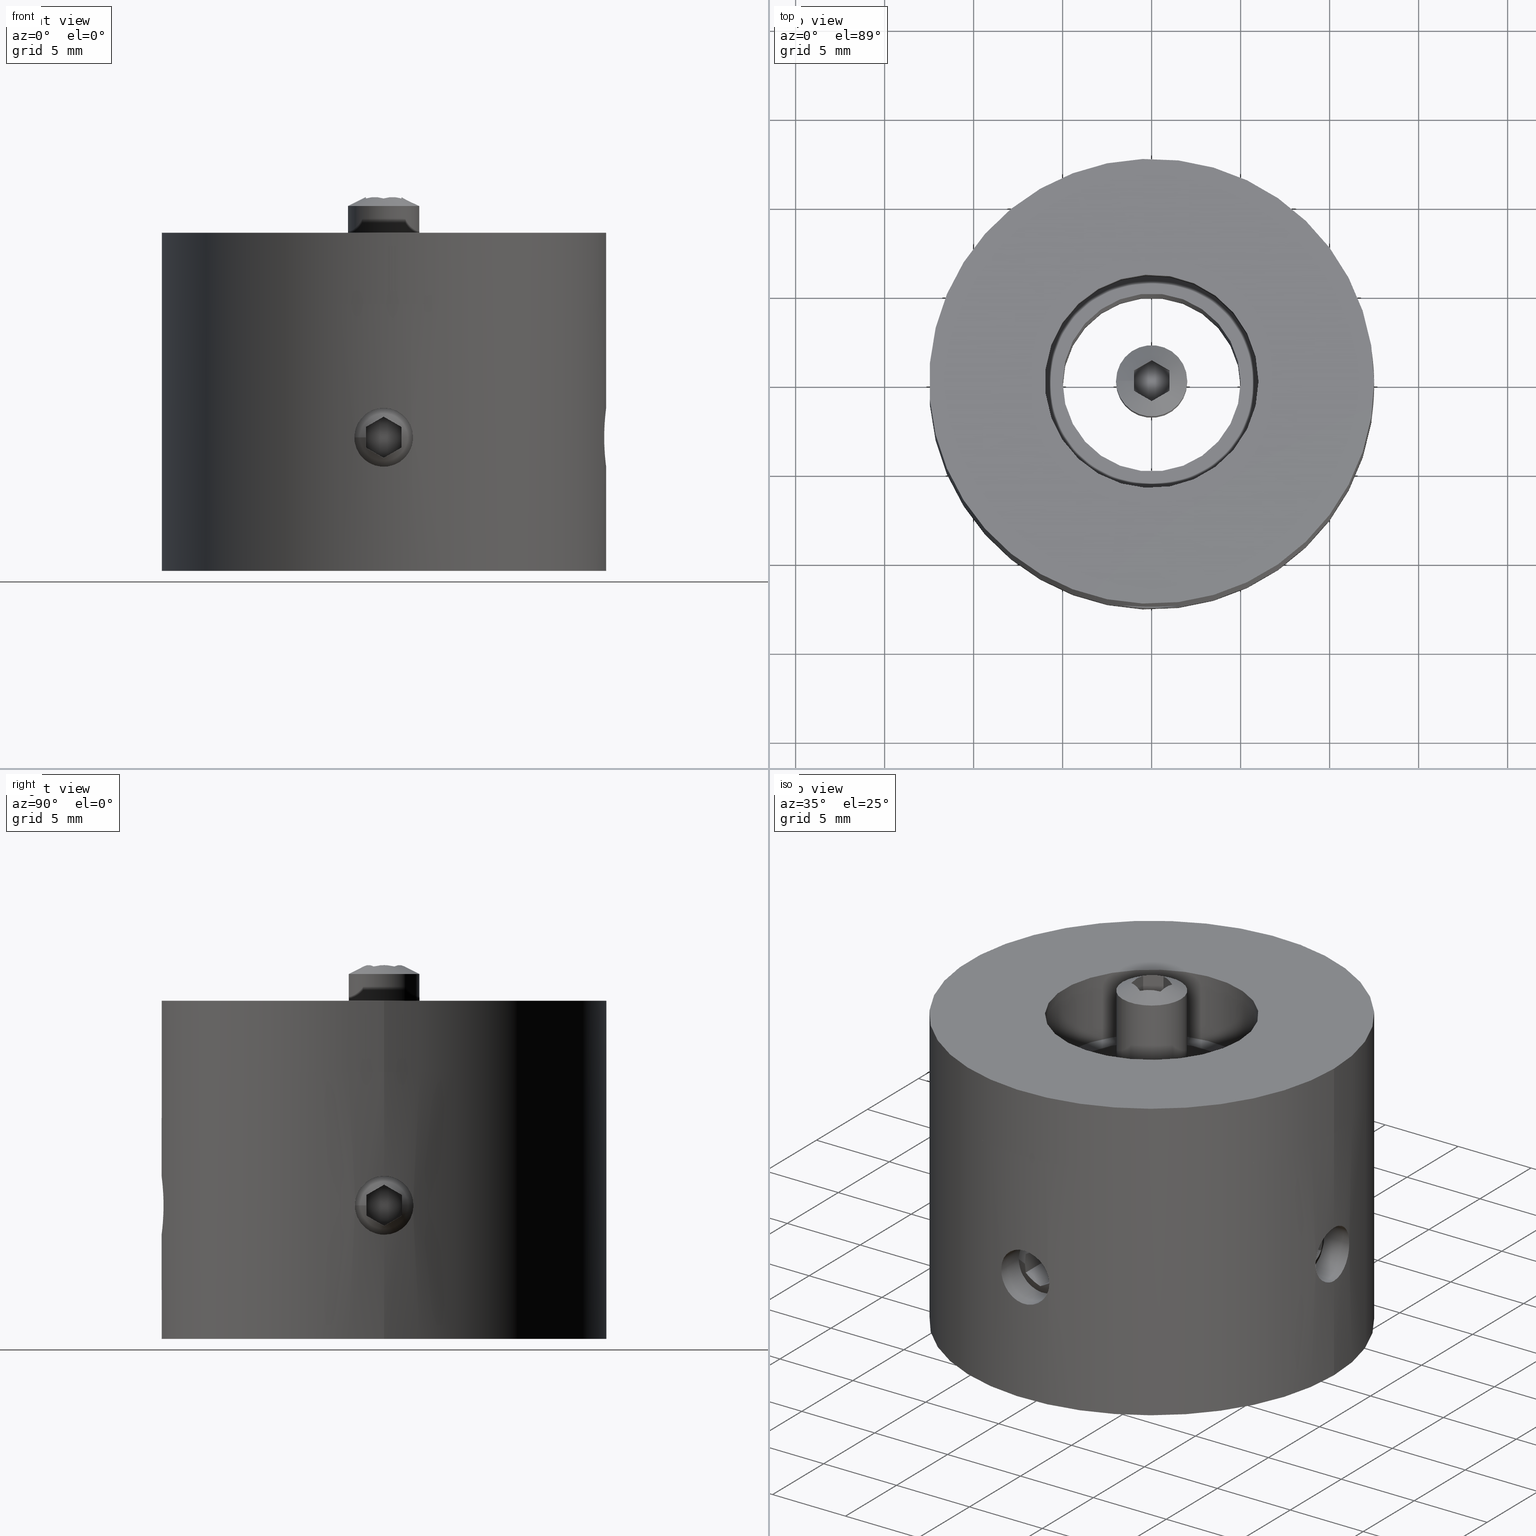
[diagram: canonical four-view strip — front | top / right | iso, engineering-drawing reading convention]
A machine part, canonical four-view strip (front | top / right | iso — engineering-drawing reading convention). The complete STEP part file that produces these views, byte-faithful:
ISO-10303-21;
HEADER;
FILE_DESCRIPTION( ( 'STEP AP203' ), '1' );
FILE_NAME( ' ', '  ', ( '  ' ), ( '  ' ), 'PSStep 10.0', '  ', '  ' );
FILE_SCHEMA( ( 'CONFIG_CONTROL_DESIGN' ) );
ENDSEC;
DATA;
#1 = DESIGN_CONTEXT( '', #93, 'design' );
#2 = APPLICATION_PROTOCOL_DEFINITION( 'INTERNATIONAL STANDARD', 'config_control_design', 1994, #93 );
#3 = PRODUCT_CATEGORY_RELATIONSHIP( 'NONE', 'NONE', #94, #95 );
#4 = DATE_AND_TIME( #96, #97 );
#5 = DATE_TIME_ROLE( 'creation_date' );
#6 = DATE_TIME_ROLE( 'classification_date' );
#7 = PERSON_AND_ORGANIZATION_ROLE( 'creator' );
#8 = PERSON_AND_ORGANIZATION_ROLE( 'design_supplier' );
#9 = PERSON_AND_ORGANIZATION_ROLE( 'classification_officer' );
#10 = PERSON_AND_ORGANIZATION_ROLE( 'design_owner' );
#11 = APPROVAL_PERSON_ORGANIZATION( #98, #99, #100 );
#12 = APPROVAL_DATE_TIME( #4, #99 );
#13 = CC_DESIGN_APPROVAL( #99, ( #101, #102, #103 ) );
#14 = CC_DESIGN_DATE_AND_TIME_ASSIGNMENT( #4, #5, ( #103 ) );
#15 = CC_DESIGN_DATE_AND_TIME_ASSIGNMENT( #4, #6, ( #101 ) );
#16 = CC_DESIGN_PERSON_AND_ORGANIZATION_ASSIGNMENT( #98, #10, ( #104 ) );
#17 = CC_DESIGN_PERSON_AND_ORGANIZATION_ASSIGNMENT( #98, #7, ( #103 ) );
#18 = CC_DESIGN_PERSON_AND_ORGANIZATION_ASSIGNMENT( #98, #7, ( #102 ) );
#19 = CC_DESIGN_PERSON_AND_ORGANIZATION_ASSIGNMENT( #98, #8, ( #102 ) );
#20 = CC_DESIGN_SECURITY_CLASSIFICATION( #101, ( #102 ) );
#21 = CC_DESIGN_PERSON_AND_ORGANIZATION_ASSIGNMENT( #98, #9, ( #101 ) );
#22 = SHAPE_DEFINITION_REPRESENTATION( #105, #106 );
#23 = DESIGN_CONTEXT( '', #107, 'design' );
#24 = APPLICATION_PROTOCOL_DEFINITION( 'INTERNATIONAL STANDARD', 'config_control_design', 1994, #107 );
#25 = PRODUCT_CATEGORY_RELATIONSHIP( 'NONE', 'NONE', #108, #109 );
#26 = DATE_AND_TIME( #110, #111 );
#27 = DATE_TIME_ROLE( 'creation_date' );
#28 = DATE_TIME_ROLE( 'classification_date' );
#29 = PERSON_AND_ORGANIZATION_ROLE( 'creator' );
#30 = PERSON_AND_ORGANIZATION_ROLE( 'design_supplier' );
#31 = PERSON_AND_ORGANIZATION_ROLE( 'classification_officer' );
#32 = PERSON_AND_ORGANIZATION_ROLE( 'design_owner' );
#33 = APPROVAL_PERSON_ORGANIZATION( #112, #113, #114 );
#34 = APPROVAL_DATE_TIME( #26, #113 );
#35 = CC_DESIGN_APPROVAL( #113, ( #115, #116, #117 ) );
#36 = CC_DESIGN_DATE_AND_TIME_ASSIGNMENT( #26, #27, ( #117 ) );
#37 = CC_DESIGN_DATE_AND_TIME_ASSIGNMENT( #26, #28, ( #115 ) );
#38 = CC_DESIGN_PERSON_AND_ORGANIZATION_ASSIGNMENT( #112, #32, ( #118 ) );
#39 = CC_DESIGN_PERSON_AND_ORGANIZATION_ASSIGNMENT( #112, #29, ( #117 ) );
#40 = CC_DESIGN_PERSON_AND_ORGANIZATION_ASSIGNMENT( #112, #29, ( #116 ) );
#41 = CC_DESIGN_PERSON_AND_ORGANIZATION_ASSIGNMENT( #112, #30, ( #116 ) );
#42 = CC_DESIGN_SECURITY_CLASSIFICATION( #115, ( #116 ) );
#43 = CC_DESIGN_PERSON_AND_ORGANIZATION_ASSIGNMENT( #112, #31, ( #115 ) );
#44 = SHAPE_DEFINITION_REPRESENTATION( #119, #120 );
#45 = DESIGN_CONTEXT( '', #121, 'design' );
#46 = APPLICATION_PROTOCOL_DEFINITION( 'INTERNATIONAL STANDARD', 'config_control_design', 1994, #121 );
#47 = PRODUCT_CATEGORY_RELATIONSHIP( 'NONE', 'NONE', #122, #123 );
#48 = DATE_AND_TIME( #124, #125 );
#49 = DATE_TIME_ROLE( 'creation_date' );
#50 = DATE_TIME_ROLE( 'classification_date' );
#51 = PERSON_AND_ORGANIZATION_ROLE( 'creator' );
#52 = PERSON_AND_ORGANIZATION_ROLE( 'design_supplier' );
#53 = PERSON_AND_ORGANIZATION_ROLE( 'classification_officer' );
#54 = PERSON_AND_ORGANIZATION_ROLE( 'design_owner' );
#55 = APPROVAL_PERSON_ORGANIZATION( #126, #127, #128 );
#56 = APPROVAL_DATE_TIME( #48, #127 );
#57 = CC_DESIGN_APPROVAL( #127, ( #129, #130, #131 ) );
#58 = CC_DESIGN_DATE_AND_TIME_ASSIGNMENT( #48, #49, ( #131 ) );
#59 = CC_DESIGN_DATE_AND_TIME_ASSIGNMENT( #48, #50, ( #129 ) );
#60 = CC_DESIGN_PERSON_AND_ORGANIZATION_ASSIGNMENT( #126, #54, ( #132 ) );
#61 = CC_DESIGN_PERSON_AND_ORGANIZATION_ASSIGNMENT( #126, #51, ( #131 ) );
#62 = CC_DESIGN_PERSON_AND_ORGANIZATION_ASSIGNMENT( #126, #51, ( #130 ) );
#63 = CC_DESIGN_PERSON_AND_ORGANIZATION_ASSIGNMENT( #126, #52, ( #130 ) );
#64 = CC_DESIGN_SECURITY_CLASSIFICATION( #129, ( #130 ) );
#65 = CC_DESIGN_PERSON_AND_ORGANIZATION_ASSIGNMENT( #126, #53, ( #129 ) );
#66 = SHAPE_DEFINITION_REPRESENTATION( #133, #134 );
#67 = DESIGN_CONTEXT( '', #135, 'design' );
#68 = APPLICATION_PROTOCOL_DEFINITION( 'INTERNATIONAL STANDARD', 'config_control_design', 1994, #135 );
#69 = PRODUCT_CATEGORY_RELATIONSHIP( 'NONE', 'NONE', #136, #137 );
#70 = DATE_AND_TIME( #138, #139 );
#71 = DATE_TIME_ROLE( 'creation_date' );
#72 = DATE_TIME_ROLE( 'classification_date' );
#73 = PERSON_AND_ORGANIZATION_ROLE( 'creator' );
#74 = PERSON_AND_ORGANIZATION_ROLE( 'design_supplier' );
#75 = PERSON_AND_ORGANIZATION_ROLE( 'classification_officer' );
#76 = PERSON_AND_ORGANIZATION_ROLE( 'design_owner' );
#77 = APPROVAL_PERSON_ORGANIZATION( #140, #141, #142 );
#78 = APPROVAL_DATE_TIME( #70, #141 );
#79 = CC_DESIGN_APPROVAL( #141, ( #143, #144, #145 ) );
#80 = CC_DESIGN_DATE_AND_TIME_ASSIGNMENT( #70, #71, ( #145 ) );
#81 = CC_DESIGN_DATE_AND_TIME_ASSIGNMENT( #70, #72, ( #143 ) );
#82 = CC_DESIGN_PERSON_AND_ORGANIZATION_ASSIGNMENT( #140, #76, ( #146 ) );
#83 = CC_DESIGN_PERSON_AND_ORGANIZATION_ASSIGNMENT( #140, #73, ( #145 ) );
#84 = CC_DESIGN_PERSON_AND_ORGANIZATION_ASSIGNMENT( #140, #73, ( #144 ) );
#85 = CC_DESIGN_PERSON_AND_ORGANIZATION_ASSIGNMENT( #140, #74, ( #144 ) );
#86 = CC_DESIGN_SECURITY_CLASSIFICATION( #143, ( #144 ) );
#87 = CC_DESIGN_PERSON_AND_ORGANIZATION_ASSIGNMENT( #140, #75, ( #143 ) );
#88 = SHAPE_DEFINITION_REPRESENTATION( #147, #148 );
#89 =  ( GEOMETRIC_REPRESENTATION_CONTEXT( 3 )GLOBAL_UNCERTAINTY_ASSIGNED_CONTEXT( ( #151 ) )GLOBAL_UNIT_ASSIGNED_CONTEXT( ( #153, #154, #155 ) )REPRESENTATION_CONTEXT( 'NONE', 'WORKSPACE' ) );
#93 = APPLICATION_CONTEXT( 'CONFIGURATION CONTROLLED 3D DESIGNS OF MECHANICAL PARTS AND ASSEMBLIES' );
#94 = PRODUCT_CATEGORY( 'part', 'NONE' );
#95 = PRODUCT_RELATED_PRODUCT_CATEGORY( 'detail', ' ', ( #104 ) );
#96 = CALENDAR_DATE( 2018, 1, 9 );
#97 = LOCAL_TIME( 8, 28, 27.0000000000000, #157 );
#98 = PERSON_AND_ORGANIZATION( #158, #159 );
#99 = APPROVAL( #160, 'SOLID MODEL' );
#100 = APPROVAL_ROLE( 'APPROVED' );
#101 = SECURITY_CLASSIFICATION( '', '', #161 );
#102 = PRODUCT_DEFINITION_FORMATION_WITH_SPECIFIED_SOURCE( ' ', 'NONE', #104, .NOT_KNOWN. );
#103 = PRODUCT_DEFINITION( 'NONE', 'NONE', #102, #1 );
#104 = PRODUCT( '1', '1', 'PART-1-DESC', ( #162 ) );
#105 = PRODUCT_DEFINITION_SHAPE( 'NONE', 'NONE', #103 );
#106 = ADVANCED_BREP_SHAPE_REPRESENTATION( '1', ( #163, #164 ), #89 );
#107 = APPLICATION_CONTEXT( 'CONFIGURATION CONTROLLED 3D DESIGNS OF MECHANICAL PARTS AND ASSEMBLIES' );
#108 = PRODUCT_CATEGORY( 'part', 'NONE' );
#109 = PRODUCT_RELATED_PRODUCT_CATEGORY( 'detail', ' ', ( #118 ) );
#110 = CALENDAR_DATE( 2018, 1, 9 );
#111 = LOCAL_TIME( 8, 28, 27.0000000000000, #165 );
#112 = PERSON_AND_ORGANIZATION( #166, #167 );
#113 = APPROVAL( #168, 'SOLID MODEL' );
#114 = APPROVAL_ROLE( 'APPROVED' );
#115 = SECURITY_CLASSIFICATION( '', '', #169 );
#116 = PRODUCT_DEFINITION_FORMATION_WITH_SPECIFIED_SOURCE( ' ', 'NONE', #118, .NOT_KNOWN. );
#117 = PRODUCT_DEFINITION( 'NONE', 'NONE', #116, #23 );
#118 = PRODUCT( '2', '2', 'PART-2-DESC', ( #170 ) );
#119 = PRODUCT_DEFINITION_SHAPE( 'NONE', 'NONE', #117 );
#120 = ADVANCED_BREP_SHAPE_REPRESENTATION( '2', ( #171, #172 ), #89 );
#121 = APPLICATION_CONTEXT( 'CONFIGURATION CONTROLLED 3D DESIGNS OF MECHANICAL PARTS AND ASSEMBLIES' );
#122 = PRODUCT_CATEGORY( 'part', 'NONE' );
#123 = PRODUCT_RELATED_PRODUCT_CATEGORY( 'detail', ' ', ( #132 ) );
#124 = CALENDAR_DATE( 2018, 1, 9 );
#125 = LOCAL_TIME( 8, 28, 27.0000000000000, #173 );
#126 = PERSON_AND_ORGANIZATION( #174, #175 );
#127 = APPROVAL( #176, 'SOLID MODEL' );
#128 = APPROVAL_ROLE( 'APPROVED' );
#129 = SECURITY_CLASSIFICATION( '', '', #177 );
#130 = PRODUCT_DEFINITION_FORMATION_WITH_SPECIFIED_SOURCE( ' ', 'NONE', #132, .NOT_KNOWN. );
#131 = PRODUCT_DEFINITION( 'NONE', 'NONE', #130, #45 );
#132 = PRODUCT( 'Assem1', 'Assem1', 'PART-Assem1-DESC', ( #178 ) );
#133 = PRODUCT_DEFINITION_SHAPE( 'NONE', 'NONE', #131 );
#134 = ADVANCED_BREP_SHAPE_REPRESENTATION( 'Assem1', ( #179, #180, #181 ), #89 );
#135 = APPLICATION_CONTEXT( 'CONFIGURATION CONTROLLED 3D DESIGNS OF MECHANICAL PARTS AND ASSEMBLIES' );
#136 = PRODUCT_CATEGORY( 'part', 'NONE' );
#137 = PRODUCT_RELATED_PRODUCT_CATEGORY( 'detail', ' ', ( #146 ) );
#138 = CALENDAR_DATE( 2018, 1, 9 );
#139 = LOCAL_TIME( 8, 28, 27.0000000000000, #182 );
#140 = PERSON_AND_ORGANIZATION( #183, #184 );
#141 = APPROVAL( #185, 'SOLID MODEL' );
#142 = APPROVAL_ROLE( 'APPROVED' );
#143 = SECURITY_CLASSIFICATION( '', '', #186 );
#144 = PRODUCT_DEFINITION_FORMATION_WITH_SPECIFIED_SOURCE( ' ', 'NONE', #146, .NOT_KNOWN. );
#145 = PRODUCT_DEFINITION( 'NONE', 'NONE', #144, #67 );
#146 = PRODUCT( '3', '3', 'PART-3-DESC', ( #187 ) );
#147 = PRODUCT_DEFINITION_SHAPE( 'NONE', 'NONE', #145 );
#148 = ADVANCED_BREP_SHAPE_REPRESENTATION( '3', ( #188 ), #89 );
#151 = UNCERTAINTY_MEASURE_WITH_UNIT( LENGTH_MEASURE( 0.00100000000000000 ), #153, '', '' );
#153 =  ( CONVERSION_BASED_UNIT( 'MILLIMETRE', #191 )LENGTH_UNIT(  )NAMED_UNIT( #194 ) );
#154 =  ( NAMED_UNIT( #196 )PLANE_ANGLE_UNIT(  )SI_UNIT( $, .RADIAN. ) );
#155 =  ( NAMED_UNIT( #196 )SI_UNIT( $, .STERADIAN. )SOLID_ANGLE_UNIT(  ) );
#157 = COORDINATED_UNIVERSAL_TIME_OFFSET( 9, 0, .AHEAD. );
#158 = PERSON( '', 'UNSPECIFIED', $, $, $, $ );
#159 = ORGANIZATION( 'UNSPECIFIED', 'UNSPECIFIED', 'UNSPECIFIED' );
#160 = APPROVAL_STATUS( 'approved' );
#161 = SECURITY_CLASSIFICATION_LEVEL( 'unclassified' );
#162 = MECHANICAL_CONTEXT( '', #93, 'mechanical' );
#163 = MANIFOLD_SOLID_BREP( '1', #202 );
#164 = AXIS2_PLACEMENT_3D( '', #203, #204, #205 );
#165 = COORDINATED_UNIVERSAL_TIME_OFFSET( 9, 0, .AHEAD. );
#166 = PERSON( '', 'UNSPECIFIED', $, $, $, $ );
#167 = ORGANIZATION( 'UNSPECIFIED', 'UNSPECIFIED', 'UNSPECIFIED' );
#168 = APPROVAL_STATUS( 'approved' );
#169 = SECURITY_CLASSIFICATION_LEVEL( 'unclassified' );
#170 = MECHANICAL_CONTEXT( '', #107, 'mechanical' );
#171 = MANIFOLD_SOLID_BREP( '2', #206 );
#172 = AXIS2_PLACEMENT_3D( '', #207, #208, #209 );
#173 = COORDINATED_UNIVERSAL_TIME_OFFSET( 9, 0, .AHEAD. );
#174 = PERSON( '', 'UNSPECIFIED', $, $, $, $ );
#175 = ORGANIZATION( 'UNSPECIFIED', 'UNSPECIFIED', 'UNSPECIFIED' );
#176 = APPROVAL_STATUS( 'approved' );
#177 = SECURITY_CLASSIFICATION_LEVEL( 'unclassified' );
#178 = MECHANICAL_CONTEXT( '', #121, 'mechanical' );
#179 = MAPPED_ITEM( '', #210, #211 );
#180 = MAPPED_ITEM( '', #212, #213 );
#181 = AXIS2_PLACEMENT_3D( '', #214, #215, #216 );
#182 = COORDINATED_UNIVERSAL_TIME_OFFSET( 9, 0, .AHEAD. );
#183 = PERSON( '', 'UNSPECIFIED', $, $, $, $ );
#184 = ORGANIZATION( 'UNSPECIFIED', 'UNSPECIFIED', 'UNSPECIFIED' );
#185 = APPROVAL_STATUS( 'approved' );
#186 = SECURITY_CLASSIFICATION_LEVEL( 'unclassified' );
#187 = MECHANICAL_CONTEXT( '', #135, 'mechanical' );
#188 = MANIFOLD_SOLID_BREP( '3', #217 );
#191 = LENGTH_MEASURE_WITH_UNIT( LENGTH_MEASURE( 1.00000000000000 ), #218 );
#194 = DIMENSIONAL_EXPONENTS( 1.00000000000000, 0.000000000000000, 0.000000000000000, 0.000000000000000, 0.000000000000000, 0.000000000000000, 0.000000000000000 );
#196 = DIMENSIONAL_EXPONENTS( 0.000000000000000, 0.000000000000000, 0.000000000000000, 0.000000000000000, 0.000000000000000, 0.000000000000000, 0.000000000000000 );
#202 = CLOSED_SHELL( '', ( #219, #220, #221, #222, #223, #224 ) );
#203 = CARTESIAN_POINT( '', ( 0.000000000000000, 0.000000000000000, 0.000000000000000 ) );
#204 = DIRECTION( '', ( 0.000000000000000, 0.000000000000000, 1.00000000000000 ) );
#205 = DIRECTION( '', ( 1.00000000000000, 0.000000000000000, 0.000000000000000 ) );
#206 = CLOSED_SHELL( '', ( #225, #226, #227, #228 ) );
#207 = CARTESIAN_POINT( '', ( 0.000000000000000, 0.000000000000000, 0.000000000000000 ) );
#208 = DIRECTION( '', ( 0.000000000000000, 0.000000000000000, 1.00000000000000 ) );
#209 = DIRECTION( '', ( 1.00000000000000, 0.000000000000000, 0.000000000000000 ) );
#210 = REPRESENTATION_MAP( #181, #148 );
#211 = AXIS2_PLACEMENT_3D( '', #229, #230, #231 );
#212 = REPRESENTATION_MAP( #181, #148 );
#213 = AXIS2_PLACEMENT_3D( '', #232, #233, #234 );
#214 = CARTESIAN_POINT( '', ( 0.000000000000000, 0.000000000000000, 0.000000000000000 ) );
#215 = DIRECTION( '', ( 0.000000000000000, 0.000000000000000, 1.00000000000000 ) );
#216 = DIRECTION( '', ( 1.00000000000000, 0.000000000000000, 0.000000000000000 ) );
#217 = CLOSED_SHELL( '', ( #235, #236, #237, #238, #239, #240, #241, #242, #243, #244, #245 ) );
#218 =  ( LENGTH_UNIT(  )NAMED_UNIT( #194 )SI_UNIT( .MILLI., .METRE. ) );
#219 = ADVANCED_FACE( '', ( #247, #248, #249, #250 ), #251, .T. );
#220 = ADVANCED_FACE( '', ( #252, #253, #254, #255 ), #256, .F. );
#221 = ADVANCED_FACE( '', ( #257, #258 ), #259, .F. );
#222 = ADVANCED_FACE( '', ( #260, #261 ), #262, .F. );
#223 = ADVANCED_FACE( '', ( #263, #264 ), #265, .T. );
#224 = ADVANCED_FACE( '', ( #266, #267 ), #268, .F. );
#225 = ADVANCED_FACE( '', ( #269, #270 ), #271, .T. );
#226 = ADVANCED_FACE( '', ( #272, #273 ), #274, .F. );
#227 = ADVANCED_FACE( '', ( #275, #276 ), #277, .F. );
#228 = ADVANCED_FACE( '', ( #278, #279 ), #280, .T. );
#229 = CARTESIAN_POINT( '', ( 0.000000000000000, -5.00000000000000, -7.50000000000000 ) );
#230 = DIRECTION( '', ( 0.000000000000000, -1.00000000000000, 0.000000000000000 ) );
#231 = DIRECTION( '', ( 1.00000000000000, 0.000000000000000, 0.000000000000000 ) );
#232 = CARTESIAN_POINT( '', ( 5.00000000000000, -3.06151588455594E-016, -7.50000000000000 ) );
#233 = DIRECTION( '', ( 1.00000000000000, -6.12303176911189E-017, 0.000000000000000 ) );
#234 = DIRECTION( '', ( 6.12303176911189E-017, 1.00000000000000, 0.000000000000000 ) );
#235 = ADVANCED_FACE( '', ( #281, #282 ), #283, .T. );
#236 = ADVANCED_FACE( '', ( #284, #285 ), #286, .F. );
#237 = ADVANCED_FACE( '', ( #287 ), #288, .T. );
#238 = ADVANCED_FACE( '', ( #289 ), #290, .T. );
#239 = ADVANCED_FACE( '', ( #291 ), #292, .T. );
#240 = ADVANCED_FACE( '', ( #293 ), #294, .T. );
#241 = ADVANCED_FACE( '', ( #295 ), #296, .T. );
#242 = ADVANCED_FACE( '', ( #297 ), #298, .T. );
#243 = ADVANCED_FACE( '', ( #299 ), #300, .T. );
#244 = ADVANCED_FACE( '', ( #301, #302 ), #303, .T. );
#245 = ADVANCED_FACE( '', ( #304, #305 ), #306, .T. );
#247 = FACE_BOUND( '', #307, .T. );
#248 = FACE_BOUND( '', #308, .T. );
#249 = FACE_OUTER_BOUND( '', #309, .T. );
#250 = FACE_OUTER_BOUND( '', #310, .T. );
#251 = CYLINDRICAL_SURFACE( '', #311, 12.5000000000000 );
#252 = FACE_BOUND( '', #312, .T. );
#253 = FACE_BOUND( '', #313, .T. );
#254 = FACE_OUTER_BOUND( '', #314, .T. );
#255 = FACE_OUTER_BOUND( '', #315, .T. );
#256 = CYLINDRICAL_SURFACE( '', #316, 5.00000000000000 );
#257 = FACE_OUTER_BOUND( '', #317, .T. );
#258 = FACE_OUTER_BOUND( '', #318, .T. );
#259 = CYLINDRICAL_SURFACE( '', #319, 1.65000000000000 );
#260 = FACE_OUTER_BOUND( '', #320, .T. );
#261 = FACE_OUTER_BOUND( '', #321, .T. );
#262 = CYLINDRICAL_SURFACE( '', #322, 1.65000000000000 );
#263 = FACE_OUTER_BOUND( '', #323, .T. );
#264 = FACE_BOUND( '', #324, .T. );
#265 = PLANE( '', #325 );
#266 = FACE_OUTER_BOUND( '', #326, .T. );
#267 = FACE_BOUND( '', #327, .T. );
#268 = PLANE( '', #328 );
#269 = FACE_OUTER_BOUND( '', #329, .T. );
#270 = FACE_OUTER_BOUND( '', #330, .T. );
#271 = CYLINDRICAL_SURFACE( '', #331, 12.5000000000000 );
#272 = FACE_OUTER_BOUND( '', #332, .T. );
#273 = FACE_BOUND( '', #333, .T. );
#274 = PLANE( '', #334 );
#275 = FACE_OUTER_BOUND( '', #335, .T. );
#276 = FACE_OUTER_BOUND( '', #336, .T. );
#277 = CYLINDRICAL_SURFACE( '', #337, 6.00000000000000 );
#278 = FACE_OUTER_BOUND( '', #338, .T. );
#279 = FACE_BOUND( '', #339, .T. );
#280 = PLANE( '', #340 );
#281 = FACE_OUTER_BOUND( '', #341, .T. );
#282 = FACE_BOUND( '', #342, .T. );
#283 = CONICAL_SURFACE( '', #343, 2.00000000000000, 1.10714871779409 );
#284 = FACE_OUTER_BOUND( '', #344, .T. );
#285 = FACE_BOUND( '', #345, .T. );
#286 = CONICAL_SURFACE( '', #346, 865.768711028376, 1.04668439371294 );
#287 = FACE_OUTER_BOUND( '', #347, .T. );
#288 = PLANE( '', #348 );
#289 = FACE_OUTER_BOUND( '', #349, .T. );
#290 = PLANE( '', #350 );
#291 = FACE_OUTER_BOUND( '', #351, .T. );
#292 = PLANE( '', #352 );
#293 = FACE_OUTER_BOUND( '', #353, .T. );
#294 = PLANE( '', #354 );
#295 = FACE_OUTER_BOUND( '', #355, .T. );
#296 = PLANE( '', #356 );
#297 = FACE_OUTER_BOUND( '', #357, .T. );
#298 = PLANE( '', #358 );
#299 = FACE_OUTER_BOUND( '', #359, .T. );
#300 = PLANE( '', #360 );
#301 = FACE_OUTER_BOUND( '', #361, .T. );
#302 = FACE_OUTER_BOUND( '', #362, .T. );
#303 = CYLINDRICAL_SURFACE( '', #363, 2.00000000000000 );
#304 = FACE_OUTER_BOUND( '', #364, .T. );
#305 = FACE_BOUND( '', #365, .T. );
#306 = CONICAL_SURFACE( '', #366, 1.00000000000000, 0.785398163397448 );
#307 = EDGE_LOOP( '', ( #367 ) );
#308 = EDGE_LOOP( '', ( #368 ) );
#309 = EDGE_LOOP( '', ( #369 ) );
#310 = EDGE_LOOP( '', ( #370 ) );
#311 = AXIS2_PLACEMENT_3D( '', #371, #372, #373 );
#312 = EDGE_LOOP( '', ( #374 ) );
#313 = EDGE_LOOP( '', ( #375 ) );
#314 = EDGE_LOOP( '', ( #376 ) );
#315 = EDGE_LOOP( '', ( #377 ) );
#316 = AXIS2_PLACEMENT_3D( '', #378, #379, #380 );
#317 = EDGE_LOOP( '', ( #381 ) );
#318 = EDGE_LOOP( '', ( #382 ) );
#319 = AXIS2_PLACEMENT_3D( '', #383, #384, #385 );
#320 = EDGE_LOOP( '', ( #386 ) );
#321 = EDGE_LOOP( '', ( #387 ) );
#322 = AXIS2_PLACEMENT_3D( '', #388, #389, #390 );
#323 = EDGE_LOOP( '', ( #391 ) );
#324 = EDGE_LOOP( '', ( #392 ) );
#325 = AXIS2_PLACEMENT_3D( '', #393, #394, #395 );
#326 = EDGE_LOOP( '', ( #396 ) );
#327 = EDGE_LOOP( '', ( #397 ) );
#328 = AXIS2_PLACEMENT_3D( '', #398, #399, #400 );
#329 = EDGE_LOOP( '', ( #401 ) );
#330 = EDGE_LOOP( '', ( #402 ) );
#331 = AXIS2_PLACEMENT_3D( '', #403, #404, #405 );
#332 = EDGE_LOOP( '', ( #406 ) );
#333 = EDGE_LOOP( '', ( #407 ) );
#334 = AXIS2_PLACEMENT_3D( '', #408, #409, #410 );
#335 = EDGE_LOOP( '', ( #411 ) );
#336 = EDGE_LOOP( '', ( #412 ) );
#337 = AXIS2_PLACEMENT_3D( '', #413, #414, #415 );
#338 = EDGE_LOOP( '', ( #416 ) );
#339 = EDGE_LOOP( '', ( #417 ) );
#340 = AXIS2_PLACEMENT_3D( '', #418, #419, #420 );
#341 = EDGE_LOOP( '', ( #421 ) );
#342 = EDGE_LOOP( '', ( #422, #423, #424, #425, #426, #427 ) );
#343 = AXIS2_PLACEMENT_3D( '', #428, #429, #430 );
#344 = EDGE_LOOP( '', ( #431 ) );
#345 = VERTEX_LOOP( '', #432 );
#346 = AXIS2_PLACEMENT_3D( '', #433, #434, #435 );
#347 = EDGE_LOOP( '', ( #436, #437, #438, #439 ) );
#348 = AXIS2_PLACEMENT_3D( '', #440, #441, #442 );
#349 = EDGE_LOOP( '', ( #443, #444, #445, #446 ) );
#350 = AXIS2_PLACEMENT_3D( '', #447, #448, #449 );
#351 = EDGE_LOOP( '', ( #450, #451, #452, #453, #454, #455 ) );
#352 = AXIS2_PLACEMENT_3D( '', #456, #457, #458 );
#353 = EDGE_LOOP( '', ( #459, #460, #461, #462 ) );
#354 = AXIS2_PLACEMENT_3D( '', #463, #464, #465 );
#355 = EDGE_LOOP( '', ( #466, #467, #468, #469 ) );
#356 = AXIS2_PLACEMENT_3D( '', #470, #471, #472 );
#357 = EDGE_LOOP( '', ( #473, #474, #475, #476 ) );
#358 = AXIS2_PLACEMENT_3D( '', #477, #478, #479 );
#359 = EDGE_LOOP( '', ( #480, #481, #482, #483 ) );
#360 = AXIS2_PLACEMENT_3D( '', #484, #485, #486 );
#361 = EDGE_LOOP( '', ( #487 ) );
#362 = EDGE_LOOP( '', ( #488 ) );
#363 = AXIS2_PLACEMENT_3D( '', #489, #490, #491 );
#364 = EDGE_LOOP( '', ( #492 ) );
#365 = EDGE_LOOP( '', ( #493 ) );
#366 = AXIS2_PLACEMENT_3D( '', #494, #495, #496 );
#367 = ORIENTED_EDGE( '', *, *, #497, .F. );
#368 = ORIENTED_EDGE( '', *, *, #498, .F. );
#369 = ORIENTED_EDGE( '', *, *, #499, .T. );
#370 = ORIENTED_EDGE( '', *, *, #500, .F. );
#371 = CARTESIAN_POINT( '', ( 0.000000000000000, 0.000000000000000, -15.0000000000000 ) );
#372 = DIRECTION( '', ( -0.000000000000000, 0.000000000000000, -1.00000000000000 ) );
#373 = DIRECTION( '', ( 1.00000000000000, 0.000000000000000, 0.000000000000000 ) );
#374 = ORIENTED_EDGE( '', *, *, #501, .T. );
#375 = ORIENTED_EDGE( '', *, *, #502, .T. );
#376 = ORIENTED_EDGE( '', *, *, #503, .F. );
#377 = ORIENTED_EDGE( '', *, *, #504, .T. );
#378 = CARTESIAN_POINT( '', ( 0.000000000000000, 0.000000000000000, -15.0000000000000 ) );
#379 = DIRECTION( '', ( -0.000000000000000, 0.000000000000000, -1.00000000000000 ) );
#380 = DIRECTION( '', ( 1.00000000000000, 0.000000000000000, 0.000000000000000 ) );
#381 = ORIENTED_EDGE( '', *, *, #498, .T. );
#382 = ORIENTED_EDGE( '', *, *, #502, .F. );
#383 = CARTESIAN_POINT( '', ( 11.0000000000000, -6.73533494602307E-016, -7.50000000000000 ) );
#384 = DIRECTION( '', ( -1.00000000000000, 6.12303176911189E-017, -0.000000000000000 ) );
#385 = DIRECTION( '', ( 6.12303176911189E-017, 1.00000000000000, 0.000000000000000 ) );
#386 = ORIENTED_EDGE( '', *, *, #497, .T. );
#387 = ORIENTED_EDGE( '', *, *, #501, .F. );
#388 = CARTESIAN_POINT( '', ( 0.000000000000000, -11.0000000000000, -7.50000000000000 ) );
#389 = DIRECTION( '', ( -0.000000000000000, 1.00000000000000, -0.000000000000000 ) );
#390 = DIRECTION( '', ( 1.00000000000000, 0.000000000000000, 0.000000000000000 ) );
#391 = ORIENTED_EDGE( '', *, *, #500, .T. );
#392 = ORIENTED_EDGE( '', *, *, #504, .F. );
#393 = CARTESIAN_POINT( '', ( 0.000000000000000, 0.000000000000000, 0.000000000000000 ) );
#394 = DIRECTION( '', ( 0.000000000000000, 0.000000000000000, 1.00000000000000 ) );
#395 = DIRECTION( '', ( 1.00000000000000, 0.000000000000000, 0.000000000000000 ) );
#396 = ORIENTED_EDGE( '', *, *, #499, .F. );
#397 = ORIENTED_EDGE( '', *, *, #503, .T. );
#398 = CARTESIAN_POINT( '', ( 0.000000000000000, 0.000000000000000, -15.0000000000000 ) );
#399 = DIRECTION( '', ( 0.000000000000000, 0.000000000000000, 1.00000000000000 ) );
#400 = DIRECTION( '', ( 1.00000000000000, 0.000000000000000, 0.000000000000000 ) );
#401 = ORIENTED_EDGE( '', *, *, #505, .F. );
#402 = ORIENTED_EDGE( '', *, *, #506, .T. );
#403 = CARTESIAN_POINT( '', ( 0.000000000000000, 0.000000000000000, 4.00000000000000 ) );
#404 = DIRECTION( '', ( 0.000000000000000, -0.000000000000000, 1.00000000000000 ) );
#405 = DIRECTION( '', ( -1.00000000000000, 0.000000000000000, 0.000000000000000 ) );
#406 = ORIENTED_EDGE( '', *, *, #506, .F. );
#407 = ORIENTED_EDGE( '', *, *, #507, .T. );
#408 = CARTESIAN_POINT( '', ( 0.000000000000000, 0.000000000000000, 0.000000000000000 ) );
#409 = DIRECTION( '', ( 0.000000000000000, 0.000000000000000, 1.00000000000000 ) );
#410 = DIRECTION( '', ( 1.00000000000000, 0.000000000000000, 0.000000000000000 ) );
#411 = ORIENTED_EDGE( '', *, *, #508, .T. );
#412 = ORIENTED_EDGE( '', *, *, #507, .F. );
#413 = CARTESIAN_POINT( '', ( 0.000000000000000, 0.000000000000000, 4.00000000000000 ) );
#414 = DIRECTION( '', ( 0.000000000000000, -0.000000000000000, 1.00000000000000 ) );
#415 = DIRECTION( '', ( -1.00000000000000, 0.000000000000000, 0.000000000000000 ) );
#416 = ORIENTED_EDGE( '', *, *, #505, .T. );
#417 = ORIENTED_EDGE( '', *, *, #508, .F. );
#418 = CARTESIAN_POINT( '', ( 0.000000000000000, 0.000000000000000, 4.00000000000000 ) );
#419 = DIRECTION( '', ( 0.000000000000000, 0.000000000000000, 1.00000000000000 ) );
#420 = DIRECTION( '', ( 1.00000000000000, 0.000000000000000, 0.000000000000000 ) );
#421 = ORIENTED_EDGE( '', *, *, #509, .F. );
#422 = ORIENTED_EDGE( '', *, *, #510, .T. );
#423 = ORIENTED_EDGE( '', *, *, #511, .T. );
#424 = ORIENTED_EDGE( '', *, *, #512, .T. );
#425 = ORIENTED_EDGE( '', *, *, #513, .T. );
#426 = ORIENTED_EDGE( '', *, *, #514, .T. );
#427 = ORIENTED_EDGE( '', *, *, #515, .T. );
#428 = CARTESIAN_POINT( '', ( 0.000000000000000, 0.000000000000000, 5.50000000000000 ) );
#429 = DIRECTION( '', ( -0.000000000000000, -0.000000000000000, -1.00000000000000 ) );
#430 = DIRECTION( '', ( -1.00000000000000, 0.000000000000000, 0.000000000000000 ) );
#431 = ORIENTED_EDGE( '', *, *, #516, .T. );
#432 = VERTEX_POINT( '', #517 );
#433 = CARTESIAN_POINT( '', ( 0.000000000000000, 0.000000000000000, -499.866306882837 ) );
#434 = DIRECTION( '', ( -0.000000000000000, -0.000000000000000, -1.00000000000000 ) );
#435 = DIRECTION( '', ( -1.00000000000000, 0.000000000000000, 0.000000000000000 ) );
#436 = ORIENTED_EDGE( '', *, *, #518, .T. );
#437 = ORIENTED_EDGE( '', *, *, #519, .F. );
#438 = ORIENTED_EDGE( '', *, *, #520, .F. );
#439 = ORIENTED_EDGE( '', *, *, #513, .F. );
#440 = CARTESIAN_POINT( '', ( 1.00000000000000, -0.577350269189626, 11.7462112512353 ) );
#441 = DIRECTION( '', ( -1.00000000000000, 3.75578649684290E-016, 0.000000000000000 ) );
#442 = DIRECTION( '', ( -3.75578649684290E-016, -1.00000000000000, 0.000000000000000 ) );
#443 = ORIENTED_EDGE( '', *, *, #521, .T. );
#444 = ORIENTED_EDGE( '', *, *, #522, .F. );
#445 = ORIENTED_EDGE( '', *, *, #518, .F. );
#446 = ORIENTED_EDGE( '', *, *, #512, .F. );
#447 = CARTESIAN_POINT( '', ( 1.00000000000000, 0.577350269189626, 11.7462112512353 ) );
#448 = DIRECTION( '', ( -0.500000000000000, -0.866025403784439, 0.000000000000000 ) );
#449 = DIRECTION( '', ( 0.866025403784439, -0.500000000000000, 0.000000000000000 ) );
#450 = ORIENTED_EDGE( '', *, *, #519, .T. );
#451 = ORIENTED_EDGE( '', *, *, #522, .T. );
#452 = ORIENTED_EDGE( '', *, *, #523, .T. );
#453 = ORIENTED_EDGE( '', *, *, #524, .T. );
#454 = ORIENTED_EDGE( '', *, *, #525, .T. );
#455 = ORIENTED_EDGE( '', *, *, #526, .T. );
#456 = CARTESIAN_POINT( '', ( 1.00000000000000, 0.577350269189626, 3.50000000000000 ) );
#457 = DIRECTION( '', ( 0.000000000000000, -0.000000000000000, 1.00000000000000 ) );
#458 = DIRECTION( '', ( 1.00000000000000, 0.000000000000000, -0.000000000000000 ) );
#459 = ORIENTED_EDGE( '', *, *, #520, .T. );
#460 = ORIENTED_EDGE( '', *, *, #526, .F. );
#461 = ORIENTED_EDGE( '', *, *, #527, .F. );
#462 = ORIENTED_EDGE( '', *, *, #514, .F. );
#463 = CARTESIAN_POINT( '', ( -2.12108042409203E-016, -1.15470053837925, 11.7462112512353 ) );
#464 = DIRECTION( '', ( -0.500000000000000, 0.866025403784439, 0.000000000000000 ) );
#465 = DIRECTION( '', ( -0.866025403784439, -0.500000000000000, 0.000000000000000 ) );
#466 = ORIENTED_EDGE( '', *, *, #527, .T. );
#467 = ORIENTED_EDGE( '', *, *, #525, .F. );
#468 = ORIENTED_EDGE( '', *, *, #528, .F. );
#469 = ORIENTED_EDGE( '', *, *, #515, .F. );
#470 = CARTESIAN_POINT( '', ( -1.00000000000000, -0.577350269189626, 11.7462112512353 ) );
#471 = DIRECTION( '', ( 0.500000000000000, 0.866025403784439, -0.000000000000000 ) );
#472 = DIRECTION( '', ( -0.866025403784439, 0.500000000000000, 0.000000000000000 ) );
#473 = ORIENTED_EDGE( '', *, *, #528, .T. );
#474 = ORIENTED_EDGE( '', *, *, #524, .F. );
#475 = ORIENTED_EDGE( '', *, *, #529, .F. );
#476 = ORIENTED_EDGE( '', *, *, #510, .F. );
#477 = CARTESIAN_POINT( '', ( -1.00000000000000, 0.577350269189626, 11.7462112512353 ) );
#478 = DIRECTION( '', ( 1.00000000000000, 1.87789324842145E-016, -0.000000000000000 ) );
#479 = DIRECTION( '', ( -1.87789324842145E-016, 1.00000000000000, 0.000000000000000 ) );
#480 = ORIENTED_EDGE( '', *, *, #529, .T. );
#481 = ORIENTED_EDGE( '', *, *, #523, .F. );
#482 = ORIENTED_EDGE( '', *, *, #521, .F. );
#483 = ORIENTED_EDGE( '', *, *, #511, .F. );
#484 = CARTESIAN_POINT( '', ( 7.07026808030676E-017, 1.15470053837925, 11.7462112512353 ) );
#485 = DIRECTION( '', ( 0.500000000000000, -0.866025403784439, 0.000000000000000 ) );
#486 = DIRECTION( '', ( 0.866025403784439, 0.500000000000000, 0.000000000000000 ) );
#487 = ORIENTED_EDGE( '', *, *, #509, .T. );
#488 = ORIENTED_EDGE( '', *, *, #530, .F. );
#489 = CARTESIAN_POINT( '', ( 0.000000000000000, 0.000000000000000, 0.000000000000000 ) );
#490 = DIRECTION( '', ( 0.000000000000000, -0.000000000000000, 1.00000000000000 ) );
#491 = DIRECTION( '', ( -1.00000000000000, 0.000000000000000, 0.000000000000000 ) );
#492 = ORIENTED_EDGE( '', *, *, #530, .T. );
#493 = ORIENTED_EDGE( '', *, *, #516, .F. );
#494 = CARTESIAN_POINT( '', ( 0.000000000000000, 0.000000000000000, -1.08420217248550E-016 ) );
#495 = DIRECTION( '', ( 0.000000000000000, -0.000000000000000, 1.00000000000000 ) );
#496 = DIRECTION( '', ( 1.00000000000000, 0.000000000000000, -0.000000000000000 ) );
#497 = EDGE_CURVE( '', #531, #531, #532, .T. );
#498 = EDGE_CURVE( '', #533, #533, #534, .T. );
#499 = EDGE_CURVE( '', #535, #535, #536, .T. );
#500 = EDGE_CURVE( '', #537, #537, #538, .T. );
#501 = EDGE_CURVE( '', #539, #539, #540, .T. );
#502 = EDGE_CURVE( '', #541, #541, #542, .T. );
#503 = EDGE_CURVE( '', #543, #543, #544, .T. );
#504 = EDGE_CURVE( '', #545, #545, #546, .T. );
#505 = EDGE_CURVE( '', #547, #547, #548, .T. );
#506 = EDGE_CURVE( '', #549, #549, #550, .T. );
#507 = EDGE_CURVE( '', #551, #551, #552, .T. );
#508 = EDGE_CURVE( '', #553, #553, #554, .T. );
#509 = EDGE_CURVE( '', #555, #555, #556, .T. );
#510 = EDGE_CURVE( '', #557, #558, #559, .T. );
#511 = EDGE_CURVE( '', #558, #560, #561, .T. );
#512 = EDGE_CURVE( '', #560, #562, #563, .T. );
#513 = EDGE_CURVE( '', #562, #564, #565, .F. );
#514 = EDGE_CURVE( '', #564, #566, #567, .T. );
#515 = EDGE_CURVE( '', #566, #557, #568, .T. );
#516 = EDGE_CURVE( '', #569, #569, #570, .T. );
#517 = CARTESIAN_POINT( '', ( 0.000000000000000, 0.000000000000000, 0.578034682000000 ) );
#518 = EDGE_CURVE( '', #562, #571, #572, .T. );
#519 = EDGE_CURVE( '', #573, #571, #574, .T. );
#520 = EDGE_CURVE( '', #564, #573, #575, .T. );
#521 = EDGE_CURVE( '', #560, #576, #577, .T. );
#522 = EDGE_CURVE( '', #571, #576, #578, .T. );
#523 = EDGE_CURVE( '', #576, #579, #580, .T. );
#524 = EDGE_CURVE( '', #579, #581, #582, .T. );
#525 = EDGE_CURVE( '', #581, #583, #584, .T. );
#526 = EDGE_CURVE( '', #583, #573, #585, .T. );
#527 = EDGE_CURVE( '', #566, #583, #586, .T. );
#528 = EDGE_CURVE( '', #557, #581, #587, .T. );
#529 = EDGE_CURVE( '', #558, #579, #588, .T. );
#530 = EDGE_CURVE( '', #589, #589, #590, .T. );
#531 = VERTEX_POINT( '', #591 );
#532 = B_SPLINE_CURVE_WITH_KNOTS( '', 3, ( #592, #593, #594, #595, #596, #597, #598, #599, #600, #601, #602, #603, #604, #605, #606, #607, #608, #609, #610, #611, #612, #613, #614, #615, #616, #617, #618, #619, #620, #621, #622, #623, #624, #625, #626, #627, #628, #629, #630, #631, #632, #633, #634, #635, #636, #637, #638, #639, #640, #641, #642, #643, #644, #645 ), .UNSPECIFIED., .T., .F., ( 2, 2, 2, 2, 2, 2, 2, 2, 2, 2, 2, 2, 2, 2, 2, 2, 2, 2, 2, 2, 2, 2, 2, 2, 2, 2, 2, 2, 2 ), ( -0.000645457543666140, 0.000000000000000, 0.000322728771833074, 0.000645457543666147, 0.000968186315499221, 0.00129091508733229, 0.00193637263099844, 0.00258183017466459, 0.00290455894649766, 0.00322728771833073, 0.00355001649016380, 0.00387274526199688, 0.00419547403382995, 0.00451820280566302, 0.00484093157749609, 0.00516366034932917, 0.00580911789299531, 0.00645457543666146, 0.00677730420849453, 0.00710003298032760, 0.00742276175216068, 0.00774549052399375, 0.00806821929582682, 0.00839094806765989, 0.00871367683949296, 0.00903640561132603, 0.00968186315499217, 0.0103273206986583, 0.0106500494704914 ), .UNSPECIFIED. );
#533 = VERTEX_POINT( '', #646 );
#534 = B_SPLINE_CURVE_WITH_KNOTS( '', 3, ( #647, #648, #649, #650, #651, #652, #653, #654, #655, #656, #657, #658, #659, #660, #661, #662, #663, #664, #665, #666, #667, #668, #669, #670, #671, #672, #673, #674, #675, #676, #677, #678, #679, #680, #681, #682, #683, #684, #685, #686, #687, #688, #689, #690, #691, #692, #693, #694, #695, #696, #697, #698, #699, #700 ), .UNSPECIFIED., .T., .F., ( 2, 2, 2, 2, 2, 2, 2, 2, 2, 2, 2, 2, 2, 2, 2, 2, 2, 2, 2, 2, 2, 2, 2, 2, 2, 2, 2, 2, 2 ), ( -0.000645458002683238, 0.000000000000000, 0.000322729001341615, 0.000645458002683230, 0.000968187004024846, 0.00129091600536646, 0.00193637400804969, 0.00258183201073292, 0.00290456101207454, 0.00322729001341616, 0.00355001901475777, 0.00387274801609939, 0.00419547701744101, 0.00451820601878262, 0.00484093502012424, 0.00516366402146586, 0.00580912202414909, 0.00645458002683233, 0.00677730902817394, 0.00710003802951556, 0.00742276703085718, 0.00774549603219880, 0.00806822503354041, 0.00839095403488203, 0.00871368303622365, 0.00903641203756527, 0.00968187004024850, 0.0103273280429317, 0.0106500570442734 ), .UNSPECIFIED. );
#535 = VERTEX_POINT( '', #701 );
#536 = CIRCLE( '', #702, 12.5000000000000 );
#537 = VERTEX_POINT( '', #703 );
#538 = CIRCLE( '', #704, 12.5000000000000 );
#539 = VERTEX_POINT( '', #705 );
#540 = B_SPLINE_CURVE_WITH_KNOTS( '', 3, ( #706, #707, #708, #709, #710, #711, #712, #713, #714, #715, #716, #717, #718, #719, #720, #721, #722, #723, #724, #725, #726, #727, #728, #729, #730, #731, #732, #733, #734, #735, #736, #737, #738, #739, #740, #741, #742, #743, #744, #745, #746, #747, #748, #749, #750, #751, #752, #753, #754, #755, #756, #757, #758, #759, #760, #761 ), .UNSPECIFIED., .T., .F., ( 2, 2, 2, 2, 2, 2, 2, 2, 2, 2, 2, 2, 2, 2, 2, 2, 2, 2, 2, 2, 2, 2, 2, 2, 2, 2, 2, 2, 2, 2 ), ( -0.000324657071432374, 0.000000000000000, 0.000324657071432377, 0.000649314142864755, 0.000973971214297132, 0.00129862828572951, 0.00194794242859426, 0.00227259950002664, 0.00259725657145902, 0.00292191364289140, 0.00324657071432377, 0.00389588485718853, 0.00422054192862091, 0.00454519900005328, 0.00486985607148566, 0.00519451314291804, 0.00584382728578279, 0.00616848435721517, 0.00649314142864755, 0.00714245557151229, 0.00746711264294467, 0.00779176971437704, 0.00811642678580942, 0.00844108385724179, 0.00909039800010654, 0.00941505507153891, 0.00973971214297129, 0.0100643692144037, 0.0103890262858360, 0.0107136833572684 ), .UNSPECIFIED. );
#541 = VERTEX_POINT( '', #762 );
#542 = B_SPLINE_CURVE_WITH_KNOTS( '', 3, ( #763, #764, #765, #766, #767, #768, #769, #770, #771, #772, #773, #774, #775, #776, #777, #778, #779, #780, #781, #782, #783, #784, #785, #786, #787, #788, #789, #790, #791, #792, #793, #794, #795, #796, #797, #798, #799, #800, #801, #802, #803, #804, #805, #806, #807, #808, #809, #810, #811, #812, #813, #814, #815, #816, #817, #818 ), .UNSPECIFIED., .T., .F., ( 2, 2, 2, 2, 2, 2, 2, 2, 2, 2, 2, 2, 2, 2, 2, 2, 2, 2, 2, 2, 2, 2, 2, 2, 2, 2, 2, 2, 2, 2 ), ( -0.000324666240844053, 0.000000000000000, 0.000324666240844053, 0.000649332481688105, 0.000973998722532158, 0.00129866496337621, 0.00194799744506432, 0.00227266368590837, 0.00259732992675242, 0.00292199616759647, 0.00324666240844053, 0.00389599489012863, 0.00422066113097268, 0.00454532737181673, 0.00486999361266078, 0.00519465985350483, 0.00584399233519294, 0.00616865857603699, 0.00649332481688104, 0.00714265729856914, 0.00746732353941319, 0.00779198978025724, 0.00811665602110129, 0.00844132226194535, 0.00909065474363345, 0.00941532098447751, 0.00973998722532156, 0.0100646534661656, 0.0103893197070097, 0.0107139859478537 ), .UNSPECIFIED. );
#543 = VERTEX_POINT( '', #819 );
#544 = CIRCLE( '', #820, 5.00000000000000 );
#545 = VERTEX_POINT( '', #821 );
#546 = CIRCLE( '', #822, 5.00000000000000 );
#547 = VERTEX_POINT( '', #823 );
#548 = CIRCLE( '', #824, 12.5000000000000 );
#549 = VERTEX_POINT( '', #825 );
#550 = CIRCLE( '', #826, 12.5000000000000 );
#551 = VERTEX_POINT( '', #827 );
#552 = CIRCLE( '', #828, 6.00000000000000 );
#553 = VERTEX_POINT( '', #829 );
#554 = CIRCLE( '', #830, 6.00000000000000 );
#555 = VERTEX_POINT( '', #831 );
#556 = CIRCLE( '', #832, 2.00000000000000 );
#557 = VERTEX_POINT( '', #833 );
#558 = VERTEX_POINT( '', #834 );
#559 = B_SPLINE_CURVE_WITH_KNOTS( '', 3, ( #835, #836, #837, #838, #839, #840 ), .UNSPECIFIED., .F., .F., ( 4, 2, 4 ), ( 0.00103458309332885, 0.00161823594737898, 0.00220188880142910 ), .UNSPECIFIED. );
#560 = VERTEX_POINT( '', #841 );
#561 = B_SPLINE_CURVE_WITH_KNOTS( '', 3, ( #842, #843, #844, #845, #846, #847 ), .UNSPECIFIED., .F., .F., ( 4, 2, 4 ), ( 2.34956865816957E-007, 0.000579233426840285, 0.00115823189681475 ), .UNSPECIFIED. );
#562 = VERTEX_POINT( '', #848 );
#563 = B_SPLINE_CURVE_WITH_KNOTS( '', 3, ( #849, #850, #851, #852, #853, #854 ), .UNSPECIFIED., .F., .F., ( 4, 2, 4 ), ( 2.34956865817124E-007, 0.000579233426840285, 0.00115823189681475 ), .UNSPECIFIED. );
#564 = VERTEX_POINT( '', #855 );
#565 = B_SPLINE_CURVE_WITH_KNOTS( '', 3, ( #856, #857, #858, #859, #860, #861 ), .UNSPECIFIED., .F., .F., ( 4, 2, 4 ), ( 0.00103458309332885, 0.00161823594737898, 0.00220188880142910 ), .UNSPECIFIED. );
#566 = VERTEX_POINT( '', #862 );
#567 = B_SPLINE_CURVE_WITH_KNOTS( '', 3, ( #863, #864, #865, #866, #867, #868 ), .UNSPECIFIED., .F., .F., ( 4, 2, 4 ), ( 2.34956865816957E-007, 0.000579233426840285, 0.00115823189681475 ), .UNSPECIFIED. );
#568 = B_SPLINE_CURVE_WITH_KNOTS( '', 3, ( #869, #870, #871, #872, #873, #874 ), .UNSPECIFIED., .F., .F., ( 4, 2, 4 ), ( 2.34956865817119E-007, 0.000579233426840285, 0.00115823189681475 ), .UNSPECIFIED. );
#569 = VERTEX_POINT( '', #875 );
#570 = CIRCLE( '', #876, 1.00000000000000 );
#571 = VERTEX_POINT( '', #877 );
#572 = LINE( '', #878, #879 );
#573 = VERTEX_POINT( '', #880 );
#574 = LINE( '', #881, #882 );
#575 = LINE( '', #883, #884 );
#576 = VERTEX_POINT( '', #885 );
#577 = LINE( '', #886, #887 );
#578 = LINE( '', #888, #889 );
#579 = VERTEX_POINT( '', #890 );
#580 = LINE( '', #891, #892 );
#581 = VERTEX_POINT( '', #893 );
#582 = LINE( '', #894, #895 );
#583 = VERTEX_POINT( '', #896 );
#584 = LINE( '', #897, #898 );
#585 = LINE( '', #899, #900 );
#586 = LINE( '', #901, #902 );
#587 = LINE( '', #903, #904 );
#588 = LINE( '', #905, #906 );
#589 = VERTEX_POINT( '', #907 );
#590 = CIRCLE( '', #908, 2.00000000000000 );
#591 = CARTESIAN_POINT( '', ( 1.65000000000000, -12.3906214533412, -7.50000000000000 ) );
#592 = CARTESIAN_POINT( '', ( 1.65000000000000, -12.3906214533412, -7.71826905951801 ) );
#593 = CARTESIAN_POINT( '', ( 1.65000000000000, -12.3906214533412, -7.39086547024099 ) );
#594 = CARTESIAN_POINT( '', ( 1.63927928764971, -12.3920624424297, -7.28357872769608 ) );
#595 = CARTESIAN_POINT( '', ( 1.59729602754681, -12.3975438519240, -7.07254222383239 ) );
#596 = CARTESIAN_POINT( '', ( 1.56551524452079, -12.4016492580202, -6.96768982475994 ) );
#597 = CARTESIAN_POINT( '', ( 1.48265636519011, -12.4118279234986, -6.76793292229991 ) );
#598 = CARTESIAN_POINT( '', ( 1.43196921546723, -12.4178537527110, -6.67320963547352 ) );
#599 = CARTESIAN_POINT( '', ( 1.31223704993625, -12.4310764450444, -6.49394231492708 ) );
#600 = CARTESIAN_POINT( '', ( 1.24262538831003, -12.4383163069103, -6.40915678441359 ) );
#601 = CARTESIAN_POINT( '', ( 1.01455389741669, -12.4596951012024, -6.18113401139812 ) );
#602 = CARTESIAN_POINT( '', ( 0.830659291219543, -12.4739529860080, -6.05823711245041 ) );
#603 = CARTESIAN_POINT( '', ( 0.433686088691652, -12.4940551596230, -5.89357805714687 ) );
#604 = CARTESIAN_POINT( '', ( 0.216392940406159, -12.4999840945541, -5.85012049582078 ) );
#605 = CARTESIAN_POINT( '', ( -0.106815357985998, -12.5000079018571, -5.84994013743731 ) );
#606 = CARTESIAN_POINT( '', ( -0.216265691929168, -12.4985775705383, -5.86067764170368 ) );
#607 = CARTESIAN_POINT( '', ( -0.427970115097146, -12.4931202554387, -5.90281803650944 ) );
#608 = CARTESIAN_POINT( '', ( -0.530880425250958, -12.4891225726529, -5.93399630468791 ) );
#609 = CARTESIAN_POINT( '', ( -0.730791897229970, -12.4790207894532, -6.01671149044133 ) );
#610 = CARTESIAN_POINT( '', ( -0.827250262449089, -12.4729178622631, -6.06832324640946 ) );
#611 = CARTESIAN_POINT( '', ( -1.00591036124370, -12.4597819941051, -6.18767928133546 ) );
#612 = CARTESIAN_POINT( '', ( -1.08932310027994, -12.4526845217204, -6.25592781942278 ) );
#613 = CARTESIAN_POINT( '', ( -1.24326574630062, -12.4382581939102, -6.40975659077194 ) );
#614 = CARTESIAN_POINT( '', ( -1.31145327703328, -12.4311585962630, -6.49295967998447 ) );
#615 = CARTESIAN_POINT( '', ( -1.43095654948918, -12.4179699265523, -6.67150542702301 ) );
#616 = CARTESIAN_POINT( '', ( -1.48268930223879, -12.4118239424372, -6.76800376097431 ) );
#617 = CARTESIAN_POINT( '', ( -1.56552070300558, -12.4016485224140, -6.96771155434107 ) );
#618 = CARTESIAN_POINT( '', ( -1.59678509975783, -12.3976099717920, -7.07055387405992 ) );
#619 = CARTESIAN_POINT( '', ( -1.63911869680844, -12.3920839879843, -7.28220071702007 ) );
#620 = CARTESIAN_POINT( '', ( -1.64995916134595, -12.3906268916297, -7.39164023981741 ) );
#621 = CARTESIAN_POINT( '', ( -1.65008132373026, -12.3906106238485, -7.71484857928700 ) );
#622 = CARTESIAN_POINT( '', ( -1.60683946715107, -12.3965689832735, -7.93217440481253 ) );
#623 = CARTESIAN_POINT( '', ( -1.44247844152577, -12.4167673561191, -8.32943579323705 ) );
#624 = CARTESIAN_POINT( '', ( -1.31979422872700, -12.4310674208756, -8.51336707331240 ) );
#625 = CARTESIAN_POINT( '', ( -1.09185984336994, -12.4524562070930, -8.74173648182691 ) );
#626 = CARTESIAN_POINT( '', ( -1.00708961419528, -12.4596881114900, -8.81143900433168 ) );
#627 = CARTESIAN_POINT( '', ( -0.828048716637366, -12.4728662563783, -8.93123620551524 ) );
#628 = CARTESIAN_POINT( '', ( -0.733389323370573, -12.4788678178135, -8.98200581168983 ) );
#629 = CARTESIAN_POINT( '', ( -0.533627226030721, -12.4890049202382, -9.06506968188484 ) );
#630 = CARTESIAN_POINT( '', ( -0.428870455530192, -12.4930861832819, -9.09691557855873 ) );
#631 = CARTESIAN_POINT( '', ( -0.217922128016400, -12.4985456032555, -9.13907875917877 ) );
#632 = CARTESIAN_POINT( '', ( -0.110564501069246, -12.4999871057620, -9.14990231634124 ) );
#633 = CARTESIAN_POINT( '', ( 0.107629476389933, -12.5000127219506, -9.15009637845094 ) );
#634 = CARTESIAN_POINT( '', ( 0.214916510287517, -12.4985983003906, -9.13947824044858 ) );
#635 = CARTESIAN_POINT( '', ( 0.426020779973065, -12.4931843369075, -9.09768091380278 ) );
#636 = CARTESIAN_POINT( '', ( 0.530947603059662, -12.4891191921329, -9.06597603438425 ) );
#637 = CARTESIAN_POINT( '', ( 0.730728225100199, -12.4790239928265, -8.98331471997770 ) );
#638 = CARTESIAN_POINT( '', ( 0.825503980860178, -12.4730363451772, -8.93271395514669 ) );
#639 = CARTESIAN_POINT( '', ( 1.00493762421534, -12.4598632762148, -8.81309804322621 ) );
#640 = CARTESIAN_POINT( '', ( 1.08976052014413, -12.4526406125701, -8.74357348943161 ) );
#641 = CARTESIAN_POINT( '', ( 1.31794697067745, -12.4312654484915, -8.51574004647339 ) );
#642 = CARTESIAN_POINT( '', ( 1.44102496745056, -12.4169383054383, -8.33193878409703 ) );
#643 = CARTESIAN_POINT( '', ( 1.60603636025096, -12.3966752416698, -7.93511183258166 ) );
#644 = CARTESIAN_POINT( '', ( 1.65000000000000, -12.3906214533412, -7.71826905951801 ) );
#645 = CARTESIAN_POINT( '', ( 1.65000000000000, -12.3906214533412, -7.39086547024099 ) );
#646 = CARTESIAN_POINT( '', ( 12.5000000000000, 0.000000000000000, -9.15000000000000 ) );
#647 = CARTESIAN_POINT( '', ( 12.5000000000000, -0.218268717583896, -9.15000000000000 ) );
#648 = CARTESIAN_POINT( '', ( 12.5000000000000, 0.109134358791947, -9.15000000000000 ) );
#649 = CARTESIAN_POINT( '', ( 12.4985720545213, 0.216421376821623, -9.13927931323533 ) );
#650 = CARTESIAN_POINT( '', ( 12.4931349301719, 0.427459040054774, -9.09729572973263 ) );
#651 = CARTESIAN_POINT( '', ( 12.4890610184038, 0.532312342015108, -9.06551461337849 ) );
#652 = CARTESIAN_POINT( '', ( 12.4789451602994, 0.732071879745783, -8.98265410566615 ) );
#653 = CARTESIAN_POINT( '', ( 12.4729501584153, 0.826796251394575, -8.93196588448889 ) );
#654 = CARTESIAN_POINT( '', ( 12.4597717426369, 1.00606451931214, -8.81223188447828 ) );
#655 = CARTESIAN_POINT( '', ( 12.4525448370918, 1.09085057747089, -8.74261895354523 ) );
#656 = CARTESIAN_POINT( '', ( 12.4311659373654, 1.31887264217724, -8.51454538490402 ) );
#657 = CARTESIAN_POINT( '', ( 12.4168511026571, 1.44176588595145, -8.33065332949920 ) );
#658 = CARTESIAN_POINT( '', ( 12.3966241038900, 1.60642180086778, -7.93368516391293 ) );
#659 = CARTESIAN_POINT( '', ( 12.3906375149967, 1.64987938550067, -7.71639287562612 ) );
#660 = CARTESIAN_POINT( '', ( 12.3906134739298, 1.65005992114066, -7.39318603801133 ) );
#661 = CARTESIAN_POINT( '', ( 12.3920568555877, 1.63932254385621, -7.28373578967451 ) );
#662 = CARTESIAN_POINT( '', ( 12.3975586241054, 1.59718241812991, -7.07203161953295 ) );
#663 = CARTESIAN_POINT( '', ( 12.4015872475425, 1.56600445929858, -6.96912206515908 ) );
#664 = CARTESIAN_POINT( '', ( 12.4117518977073, 1.48329061707825, -6.76921255242607 ) );
#665 = CARTESIAN_POINT( '', ( 12.4178861491316, 1.43168025434324, -6.67275594623392 ) );
#666 = CARTESIAN_POINT( '', ( 12.4310660921789, 1.31232639817633, -6.49409717178189 ) );
#667 = CARTESIAN_POINT( '', ( 12.4381766258266, 1.24407795071813, -6.41068354721773 ) );
#668 = CARTESIAN_POINT( '', ( 12.4526029715856, 1.09025086781876, -6.25674084480122 ) );
#669 = CARTESIAN_POINT( '', ( 12.4596897012928, 1.00704791385508, -6.18855246280475 ) );
#670 = CARTESIAN_POINT( '', ( 12.4728344484330, 0.828500920509317, -6.06904704188762 ) );
#671 = CARTESIAN_POINT( '', ( 12.4789491180119, 0.732001039365523, -6.01731296332802 ) );
#672 = CARTESIAN_POINT( '', ( 12.4890617389637, 0.532290796386285, -5.93447999743542 ) );
#673 = CARTESIAN_POINT( '', ( 12.4930693351846, 0.429447200475604, -5.90321512276611 ) );
#674 = CARTESIAN_POINT( '', ( 12.4985507221777, 0.217798431761399, -5.86088112533549 ) );
#675 = CARTESIAN_POINT( '', ( 12.4999946137096, 0.108359263671626, -5.85004080523313 ) );
#676 = CARTESIAN_POINT( '', ( 12.5000107259847, -0.214849113189731, -5.84991874253468 ) );
#677 = CARTESIAN_POINT( '', ( 12.4941097740931, -0.432176451175783, -5.89316081998643 ) );
#678 = CARTESIAN_POINT( '', ( 12.4740363565797, -0.829441080950476, -6.05752430571283 ) );
#679 = CARTESIAN_POINT( '', ( 12.4597934264066, -1.01337538683081, -6.18021219723961 ) );
#680 = CARTESIAN_POINT( '', ( 12.4384050229508, -1.24174311388204, -6.40814771197568 ) );
#681 = CARTESIAN_POINT( '', ( 12.4311602416685, -1.31144442297500, -6.49291755280754 ) );
#682 = CARTESIAN_POINT( '', ( 12.4179380173812, -1.43123961134091, -6.67195730489055 ) );
#683 = CARTESIAN_POINT( '', ( 12.4119056874338, -1.48200811376879, -6.76661555459637 ) );
#684 = CARTESIAN_POINT( '', ( 12.4017057565485, -1.56507034059851, -6.96637501650000 ) );
#685 = CARTESIAN_POINT( '', ( 12.3975929814543, -1.59691586009820, -7.07113081673446 ) );
#686 = CARTESIAN_POINT( '', ( 12.3920891384583, -1.63907863830306, -7.28207740354287 ) );
#687 = CARTESIAN_POINT( '', ( 12.3906344755286, -1.64990221026727, -7.38943317667250 ) );
#688 = CARTESIAN_POINT( '', ( 12.3906086053349, -1.65009648172532, -7.60762865261294 ) );
#689 = CARTESIAN_POINT( '', ( 12.3920359533307, -1.63947830891800, -7.71491572535688 ) );
#690 = CARTESIAN_POINT( '', ( 12.3974940406203, -1.59768135334861, -7.92601899908389 ) );
#691 = CARTESIAN_POINT( '', ( 12.4015906304113, -1.56597694515913, -8.03094465513571 ) );
#692 = CARTESIAN_POINT( '', ( 12.4117486365143, -1.48331714109242, -8.23072312029147 ) );
#693 = CARTESIAN_POINT( '', ( 12.4177671701707, -1.43271737321076, -8.32549794405439 ) );
#694 = CARTESIAN_POINT( '', ( 12.4309846987584, -1.31310318836816, -8.50493081544718 ) );
#695 = CARTESIAN_POINT( '', ( 12.4382204141905, -1.24357997421284, -8.58975308681178 ) );
#696 = CARTESIAN_POINT( '', ( 12.4595958028820, -1.01574865286461, -8.81794022782515 ) );
#697 = CARTESIAN_POINT( '', ( 12.4738662034013, -0.831944848169980, -8.94102190300126 ) );
#698 = CARTESIAN_POINT( '', ( 12.4940044451726, -0.435112875883506, -9.10603646925165 ) );
#699 = CARTESIAN_POINT( '', ( 12.5000000000000, -0.218268717583896, -9.15000000000000 ) );
#700 = CARTESIAN_POINT( '', ( 12.5000000000000, 0.109134358791947, -9.15000000000000 ) );
#701 = CARTESIAN_POINT( '', ( 12.5000000000000, 0.000000000000000, -15.0000000000000 ) );
#702 = AXIS2_PLACEMENT_3D( '', #909, #910, #911 );
#703 = CARTESIAN_POINT( '', ( 12.5000000000000, 0.000000000000000, 0.000000000000000 ) );
#704 = AXIS2_PLACEMENT_3D( '', #912, #913, #914 );
#705 = CARTESIAN_POINT( '', ( 1.65000000000000, -4.71990466005406, -7.50000000000000 ) );
#706 = CARTESIAN_POINT( '', ( 1.65000000000000, -4.71990466005406, -7.60984284401990 ) );
#707 = CARTESIAN_POINT( '', ( 1.65000000000000, -4.71990466005406, -7.39015715598009 ) );
#708 = CARTESIAN_POINT( '', ( 1.63914246186063, -4.72373937000455, -7.28231638102118 ) );
#709 = CARTESIAN_POINT( '', ( 1.59675763418524, -4.73823455557833, -7.07041970957995 ) );
#710 = CARTESIAN_POINT( '', ( 1.56467085607757, -4.74907422861496, -6.96523957759678 ) );
#711 = CARTESIAN_POINT( '', ( 1.48161631412132, -4.77563755057719, -6.76584967822866 ) );
#712 = CARTESIAN_POINT( '', ( 1.43090816834928, -4.79128097869830, -6.67140496755757 ) );
#713 = CARTESIAN_POINT( '', ( 1.31123387755562, -4.82540540487897, -6.49266012072021 ) );
#714 = CARTESIAN_POINT( '', ( 1.24215855603374, -4.84386979673163, -6.40869415662239 ) );
#715 = CARTESIAN_POINT( '', ( 1.01558268518194, -4.89823659632991, -6.18215437245847 ) );
#716 = CARTESIAN_POINT( '', ( 0.832784277326460, -4.93420991132285, -6.05947698965034 ) );
#717 = CARTESIAN_POINT( '', ( 0.535369292542457, -4.97225994855381, -5.93557877488835 ) );
#718 = CARTESIAN_POINT( '', ( 0.430551626182311, -4.98257513540077, -5.90345275686913 ) );
#719 = CARTESIAN_POINT( '', ( 0.217181257229954, -4.99642492030354, -5.86074098939032 ) );
#720 = CARTESIAN_POINT( '', ( 0.109589735836817, -4.99997611963850, -5.85007236474598 ) );
#721 = CARTESIAN_POINT( '', ( -0.107399725579996, -5.00002364055425, -5.84992836194272 ) );
#722 = CARTESIAN_POINT( '', ( -0.217589103969318, -4.99639571357585, -5.86083136172317 ) );
#723 = CARTESIAN_POINT( '', ( -0.429888031933363, -4.98262093930551, -5.90331120036591 ) );
#724 = CARTESIAN_POINT( '', ( -0.533169141922576, -4.97252229153557, -5.93473414663176 ) );
#725 = CARTESIAN_POINT( '', ( -0.834407577641079, -4.93404023992932, -6.06001038307514 ) );
#726 = CARTESIAN_POINT( '', ( -1.01523288364966, -4.89833627544838, -6.18168050813238 ) );
#727 = CARTESIAN_POINT( '', ( -1.24304942340763, -4.84364812407138, -6.40964723431524 ) );
#728 = CARTESIAN_POINT( '', ( -1.31080292929161, -4.82552083813053, -6.49213289168989 ) );
#729 = CARTESIAN_POINT( '', ( -1.43023475827665, -4.79148037822223, -6.67028380534656 ) );
#730 = CARTESIAN_POINT( '', ( -1.48203946150515, -4.77550425874862, -6.76677131110006 ) );
#731 = CARTESIAN_POINT( '', ( -1.56467612954795, -4.74907048804370, -6.96534694865995 ) );
#732 = CARTESIAN_POINT( '', ( -1.59622837391478, -4.73841413885257, -7.06825322426624 ) );
#733 = CARTESIAN_POINT( '', ( -1.63911496821324, -4.72375017268567, -7.28170565507452 ) );
#734 = CARTESIAN_POINT( '', ( -1.64995491767038, -4.71992042008356, -7.39112555080607 ) );
#735 = CARTESIAN_POINT( '', ( -1.65008973761372, -4.71987328928304, -7.71569274895013 ) );
#736 = CARTESIAN_POINT( '', ( -1.60638865883120, -4.73572155914972, -7.93414288015783 ) );
#737 = CARTESIAN_POINT( '', ( -1.48230748945050, -4.77542147972021, -8.23272139836521 ) );
#738 = CARTESIAN_POINT( '', ( -1.43053015294484, -4.79139170588078, -8.32920559661750 ) );
#739 = CARTESIAN_POINT( '', ( -1.31117319942413, -4.82541975778060, -8.50738437602440 ) );
#740 = CARTESIAN_POINT( '', ( -1.24336472234906, -4.84357094067614, -8.59002546681368 ) );
#741 = CARTESIAN_POINT( '', ( -1.01487278362588, -4.89842570563578, -8.81870339250062 ) );
#742 = CARTESIAN_POINT( '', ( -0.834890584362388, -4.93395228801696, -8.93969010118176 ) );
#743 = CARTESIAN_POINT( '', ( -0.533883631712932, -4.97244408061672, -9.06501780712343 ) );
#744 = CARTESIAN_POINT( '', ( -0.430753647598112, -4.98254113281938, -9.09644007044165 ) );
#745 = CARTESIAN_POINT( '', ( -0.218930159966146, -4.99633209767058, -9.13897504205769 ) );
#746 = CARTESIAN_POINT( '', ( -0.108873703328001, -4.99999698521520, -9.14999086428846 ) );
#747 = CARTESIAN_POINT( '', ( 0.108596620425361, -5.00000301094606, -9.15000912407898 ) );
#748 = CARTESIAN_POINT( '', ( 0.216271051430784, -4.99646296184009, -9.13937402207826 ) );
#749 = CARTESIAN_POINT( '', ( 0.429509801967291, -4.98266360762402, -9.09682237019840 ) );
#750 = CARTESIAN_POINT( '', ( 0.534588579229947, -4.97234891391611, -9.06470542486823 ) );
#751 = CARTESIAN_POINT( '', ( 0.832742101426960, -4.93423705101147, -8.94062231522759 ) );
#752 = CARTESIAN_POINT( '', ( 1.01543475257376, -4.89827371703931, -8.81800633514497 ) );
#753 = CARTESIAN_POINT( '', ( 1.24230659346456, -4.84383346263862, -8.59115142711205 ) );
#754 = CARTESIAN_POINT( '', ( 1.31153768902027, -4.82532076286927, -8.50691723344733 ) );
#755 = CARTESIAN_POINT( '', ( 1.43090097578797, -4.79128103661088, -8.32857457251771 ) );
#756 = CARTESIAN_POINT( '', ( 1.48155885079314, -4.77565536551578, -8.23426232799146 ) );
#757 = CARTESIAN_POINT( '', ( 1.56461113709011, -4.74909389128460, -8.03492970039484 ) );
#758 = CARTESIAN_POINT( '', ( 1.59672804550862, -4.73824458192247, -7.92969669660919 ) );
#759 = CARTESIAN_POINT( '', ( 1.63913503667331, -4.72374200194945, -7.71775223062141 ) );
#760 = CARTESIAN_POINT( '', ( 1.65000000000000, -4.71990466005406, -7.60984284401990 ) );
#761 = CARTESIAN_POINT( '', ( 1.65000000000000, -4.71990466005406, -7.39015715598009 ) );
#762 = CARTESIAN_POINT( '', ( 5.00000000000000, 0.000000000000000, -9.15000000000000 ) );
#763 = CARTESIAN_POINT( '', ( 5.00000000000000, -0.109835536220147, -9.15000000000000 ) );
#764 = CARTESIAN_POINT( '', ( 5.00000000000000, 0.109835536220146, -9.15000000000000 ) );
#765 = CARTESIAN_POINT( '', ( 4.99638763625927, 0.217688094822252, -9.13914354679063 ) );
#766 = CARTESIAN_POINT( '', ( 4.98263907752836, 0.429633962204031, -9.09674491767895 ) );
#767 = CARTESIAN_POINT( '', ( 4.97232767456793, 0.534855307893066, -9.06464274572347 ) );
#768 = CARTESIAN_POINT( '', ( 4.94680087144427, 0.734352668636630, -8.98152059728939 ) );
#769 = CARTESIAN_POINT( '', ( 4.93166204488017, 0.828842250047667, -8.93076789090967 ) );
#770 = CARTESIAN_POINT( '', ( 4.89826049237377, 1.00762798156162, -8.81101566882179 ) );
#771 = CARTESIAN_POINT( '', ( 4.87999899290080, 1.09162197388272, -8.74188149245731 ) );
#772 = CARTESIAN_POINT( '', ( 4.82562647798528, 1.31812135756645, -8.51522844099916 ) );
#773 = CARTESIAN_POINT( '', ( 4.78874071107988, 1.44064944240953, -8.33253363271900 ) );
#774 = CARTESIAN_POINT( '', ( 4.74914509275229, 1.56444814278200, -8.03527822198063 ) );
#775 = CARTESIAN_POINT( '', ( 4.73830359005845, 1.59655512217687, -7.93051707068544 ) );
#776 = CARTESIAN_POINT( '', ( 4.72370050753533, 1.63925674768184, -7.71718775628551 ) );
#777 = CARTESIAN_POINT( '', ( 4.71993113326332, 1.64992427208637, -7.60961842992412 ) );
#778 = CARTESIAN_POINT( '', ( 4.71987846502802, 1.65007493215697, -7.39267329285808 ) );
#779 = CARTESIAN_POINT( '', ( 4.72372784040480, 1.63917627600394, -7.28247369567573 ) );
#780 = CARTESIAN_POINT( '', ( 4.73825079285074, 1.59671005448043, -7.07019357984295 ) );
#781 = CARTESIAN_POINT( '', ( 4.74886821385391, 1.56530191977704, -6.96694763823385 ) );
#782 = CARTESIAN_POINT( '', ( 4.78891789519195, 1.44011910741734, -6.66584375670982 ) );
#783 = CARTESIAN_POINT( '', ( 4.82553797434980, 1.31855584187964, -6.48508180242912 ) );
#784 = CARTESIAN_POINT( '', ( 4.88021561330725, 1.09068654073655, -6.25724500249043 ) );
#785 = CARTESIAN_POINT( '', ( 4.89813662733830, 1.00820396732400, -6.18945176451320 ) );
#786 = CARTESIAN_POINT( '', ( 4.93146357862007, 0.829990742445133, -6.06992053202600 ) );
#787 = CARTESIAN_POINT( '', ( 4.94692765916273, 0.733441808669379, -6.01806139762505 ) );
#788 = CARTESIAN_POINT( '', ( 4.97232986094084, 0.534757800961844, -5.93535531118925 ) );
#789 = CARTESIAN_POINT( '', ( 4.98246930232007, 0.431795178860569, -5.90378191972780 ) );
#790 = CARTESIAN_POINT( '', ( 4.99637957981227, 0.218262501323627, -5.86087806530720 ) );
#791 = CARTESIAN_POINT( '', ( 4.99998552098559, 0.108867850517933, -5.85004387580442 ) );
#792 = CARTESIAN_POINT( '', ( 5.00002882455228, -0.215734627295231, -5.84991265286552 ) );
#793 = CARTESIAN_POINT( '', ( 4.98515344017731, -0.434216836233566, -5.89361895302897 ) );
#794 = CARTESIAN_POINT( '', ( 4.94701086894016, -0.732910794935545, -6.01778279294122 ) );
#795 = CARTESIAN_POINT( '', ( 4.93155325174304, -0.829459497867047, -6.06961279887998 ) );
#796 = CARTESIAN_POINT( '', ( 4.89823911244812, -1.00770736360446, -6.18907037829364 ) );
#797 = CARTESIAN_POINT( '', ( 4.88029505191802, -1.09034869156518, -6.25692003398851 ) );
#798 = CARTESIAN_POINT( '', ( 4.82544979572954, -1.31893689037321, -6.48543715640651 ) );
#799 = CARTESIAN_POINT( '', ( 4.78900740359890, -1.43982313873576, -6.66537125733255 ) );
#800 = CARTESIAN_POINT( '', ( 4.74895189866938, -1.56504840492742, -6.96621873162731 ) );
#801 = CARTESIAN_POINT( '', ( 4.73833847797232, -1.59645019954891, -7.06929452586912 ) );
#802 = CARTESIAN_POINT( '', ( 4.72380037409615, -1.63896760101044, -7.28103505320678 ) );
#803 = CARTESIAN_POINT( '', ( 4.71990866955540, -1.64998853062776, -7.39108189098146 ) );
#804 = CARTESIAN_POINT( '', ( 4.71990065695902, -1.65001145104670, -7.60857033245831 ) );
#805 = CARTESIAN_POINT( '', ( 4.72365834343302, -1.63937700238736, -7.71623240631197 ) );
#806 = CARTESIAN_POINT( '', ( 4.73820482184360, -1.59684694560844, -7.92941034197728 ) );
#807 = CARTESIAN_POINT( '', ( 4.74904714852633, -1.56474738962517, -8.03445665013771 ) );
#808 = CARTESIAN_POINT( '', ( 4.78871320555187, -1.44074934809374, -8.33249896866496 ) );
#809 = CARTESIAN_POINT( '', ( 4.82558907262399, -1.31828279837326, -8.51507753483999 ) );
#810 = CARTESIAN_POINT( '', ( 4.88003247062558, -1.09147970398846, -8.74201853461902 ) );
#811 = CARTESIAN_POINT( '', ( 4.89833906802602, -1.00722776289552, -8.81130283173932 ) );
#812 = CARTESIAN_POINT( '', ( 4.93165924772445, -0.828836809047125, -8.93075239886000 ) );
#813 = CARTESIAN_POINT( '', ( 4.94678192412641, -0.734476668026768, -8.98145734709692 ) );
#814 = CARTESIAN_POINT( '', ( 4.97230806618776, -0.535032593085342, -9.06458044583188 ) );
#815 = CARTESIAN_POINT( '', ( 4.98262901639659, -0.429757028653539, -9.09671366192997 ) );
#816 = CARTESIAN_POINT( '', ( 4.99638506420792, -0.217759750354423, -9.13913584336275 ) );
#817 = CARTESIAN_POINT( '', ( 5.00000000000000, -0.109835536220147, -9.15000000000000 ) );
#818 = CARTESIAN_POINT( '', ( 5.00000000000000, 0.109835536220146, -9.15000000000000 ) );
#819 = CARTESIAN_POINT( '', ( 5.00000000000000, 0.000000000000000, -15.0000000000000 ) );
#820 = AXIS2_PLACEMENT_3D( '', #915, #916, #917 );
#821 = CARTESIAN_POINT( '', ( 5.00000000000000, 0.000000000000000, 0.000000000000000 ) );
#822 = AXIS2_PLACEMENT_3D( '', #918, #919, #920 );
#823 = CARTESIAN_POINT( '', ( 12.5000000000000, 0.000000000000000, 4.00000000000000 ) );
#824 = AXIS2_PLACEMENT_3D( '', #921, #922, #923 );
#825 = CARTESIAN_POINT( '', ( 12.5000000000000, 0.000000000000000, 0.000000000000000 ) );
#826 = AXIS2_PLACEMENT_3D( '', #924, #925, #926 );
#827 = CARTESIAN_POINT( '', ( 6.00000000000000, 0.000000000000000, 0.000000000000000 ) );
#828 = AXIS2_PLACEMENT_3D( '', #927, #928, #929 );
#829 = CARTESIAN_POINT( '', ( 6.00000000000000, 0.000000000000000, 4.00000000000000 ) );
#830 = AXIS2_PLACEMENT_3D( '', #930, #931, #932 );
#831 = CARTESIAN_POINT( '', ( -2.00000000000000, 0.000000000000000, 5.50000000000000 ) );
#832 = AXIS2_PLACEMENT_3D( '', #933, #934, #935 );
#833 = CARTESIAN_POINT( '', ( -1.00000000000000, -0.577350269189626, 5.92264973081037 ) );
#834 = CARTESIAN_POINT( '', ( -1.00000000000000, 0.577350269189626, 5.92264973081037 ) );
#835 = CARTESIAN_POINT( '', ( -1.00000000000000, -0.577350269189626, 5.92264973081038 ) );
#836 = CARTESIAN_POINT( '', ( -1.00000000000000, -0.387960270642686, 5.96999723044711 ) );
#837 = CARTESIAN_POINT( '', ( -1.00000000000000, -0.193897498925762, 5.99997405626547 ) );
#838 = CARTESIAN_POINT( '', ( -1.00000000000000, 0.193361923930962, 6.00002590787946 ) );
#839 = CARTESIAN_POINT( '', ( -1.00000000000000, 0.389530102282244, 5.96960477253746 ) );
#840 = CARTESIAN_POINT( '', ( -1.00000000000000, 0.577350269189699, 5.92264973081059 ) );
#841 = CARTESIAN_POINT( '', ( 0.000000000000000, 1.15470053837925, 5.92264973081037 ) );
#842 = CARTESIAN_POINT( '', ( -1.00000000000000, 0.577350269189626, 5.92264973081037 ) );
#843 = CARTESIAN_POINT( '', ( -0.835714454593608, 0.672200573053970, 5.97007488274255 ) );
#844 = CARTESIAN_POINT( '', ( -0.670138468625594, 0.767795913123941, 5.99972641485991 ) );
#845 = CARTESIAN_POINT( '', ( -0.334720282664987, 0.961449693079393, 6.00026965057048 ) );
#846 = CARTESIAN_POINT( '', ( -0.164913583655277, 1.05948763646285, 5.97025618176874 ) );
#847 = CARTESIAN_POINT( '', ( 2.43844823692196E-014, 1.15470053837927, 5.92264973081053 ) );
#848 = CARTESIAN_POINT( '', ( 1.00000000000000, 0.577350269189626, 5.92264973081037 ) );
#849 = CARTESIAN_POINT( '', ( 2.46763538568854E-017, 1.15470053837925, 5.92264973081037 ) );
#850 = CARTESIAN_POINT( '', ( 0.164285545406392, 1.05985023451491, 5.97007488274255 ) );
#851 = CARTESIAN_POINT( '', ( 0.329861531374406, 0.964254894444936, 5.99972641485991 ) );
#852 = CARTESIAN_POINT( '', ( 0.665279717335012, 0.770601114489484, 6.00026965057048 ) );
#853 = CARTESIAN_POINT( '', ( 0.835086416344722, 0.672563171106026, 5.97025618176874 ) );
#854 = CARTESIAN_POINT( '', ( 1.00000000000002, 0.577350269189612, 5.92264973081053 ) );
#855 = CARTESIAN_POINT( '', ( 1.00000000000000, -0.577350269189626, 5.92264973081037 ) );
#856 = CARTESIAN_POINT( '', ( 1.00000000000000, -0.577350269189626, 5.92264973081038 ) );
#857 = CARTESIAN_POINT( '', ( 1.00000000000000, -0.387960270642686, 5.96999723044711 ) );
#858 = CARTESIAN_POINT( '', ( 1.00000000000000, -0.193897498925762, 5.99997405626547 ) );
#859 = CARTESIAN_POINT( '', ( 1.00000000000000, 0.193361923930962, 6.00002590787946 ) );
#860 = CARTESIAN_POINT( '', ( 1.00000000000000, 0.389530102282244, 5.96960477253746 ) );
#861 = CARTESIAN_POINT( '', ( 1.00000000000000, 0.577350269189699, 5.92264973081059 ) );
#862 = CARTESIAN_POINT( '', ( -2.10101866403920E-016, -1.15470053837925, 5.92264973081037 ) );
#863 = CARTESIAN_POINT( '', ( 1.00000000000000, -0.577350269189626, 5.92264973081037 ) );
#864 = CARTESIAN_POINT( '', ( 0.835714454593608, -0.672200573053971, 5.97007488274255 ) );
#865 = CARTESIAN_POINT( '', ( 0.670138468625594, -0.767795913123942, 5.99972641485991 ) );
#866 = CARTESIAN_POINT( '', ( 0.334720282664987, -0.961449693079393, 6.00026965057048 ) );
#867 = CARTESIAN_POINT( '', ( 0.164913583655277, -1.05948763646285, 5.97025618176874 ) );
#868 = CARTESIAN_POINT( '', ( -2.45022263595377E-014, -1.15470053837927, 5.92264973081053 ) );
#869 = CARTESIAN_POINT( '', ( -2.37796229708607E-016, -1.15470053837925, 5.92264973081037 ) );
#870 = CARTESIAN_POINT( '', ( -0.164285545406392, -1.05985023451491, 5.97007488274255 ) );
#871 = CARTESIAN_POINT( '', ( -0.329861531374406, -0.964254894444936, 5.99972641485991 ) );
#872 = CARTESIAN_POINT( '', ( -0.665279717335013, -0.770601114489484, 6.00026965057048 ) );
#873 = CARTESIAN_POINT( '', ( -0.835086416344722, -0.672563171106026, 5.97025618176874 ) );
#874 = CARTESIAN_POINT( '', ( -1.00000000000002, -0.577350269189612, 5.92264973081053 ) );
#875 = CARTESIAN_POINT( '', ( -1.00000000000000, 0.000000000000000, -1.08420217248550E-016 ) );
#876 = AXIS2_PLACEMENT_3D( '', #936, #937, #938 );
#877 = CARTESIAN_POINT( '', ( 1.00000000000000, 0.577350269189626, 3.50000000000000 ) );
#878 = CARTESIAN_POINT( '', ( 1.00000000000000, 0.577350269189626, 11.7462112512353 ) );
#879 = VECTOR( '', #939, 1000.00000000000 );
#880 = CARTESIAN_POINT( '', ( 1.00000000000000, -0.577350269189626, 3.50000000000000 ) );
#881 = CARTESIAN_POINT( '', ( 1.00000000000000, -0.577350269189626, 3.50000000000000 ) );
#882 = VECTOR( '', #940, 1000.00000000000 );
#883 = CARTESIAN_POINT( '', ( 1.00000000000000, -0.577350269189626, 11.7462112512353 ) );
#884 = VECTOR( '', #941, 1000.00000000000 );
#885 = CARTESIAN_POINT( '', ( 0.000000000000000, 1.15470053837925, 3.50000000000000 ) );
#886 = CARTESIAN_POINT( '', ( 0.000000000000000, 1.15470053837925, 11.7462112512353 ) );
#887 = VECTOR( '', #942, 1000.00000000000 );
#888 = CARTESIAN_POINT( '', ( 1.00000000000000, 0.577350269189626, 3.50000000000000 ) );
#889 = VECTOR( '', #943, 1000.00000000000 );
#890 = CARTESIAN_POINT( '', ( -1.00000000000000, 0.577350269189626, 3.50000000000000 ) );
#891 = CARTESIAN_POINT( '', ( 7.07026808030676E-017, 1.15470053837925, 3.50000000000000 ) );
#892 = VECTOR( '', #944, 1000.00000000000 );
#893 = CARTESIAN_POINT( '', ( -1.00000000000000, -0.577350269189626, 3.50000000000000 ) );
#894 = CARTESIAN_POINT( '', ( -1.00000000000000, 0.577350269189626, 3.50000000000000 ) );
#895 = VECTOR( '', #945, 1000.00000000000 );
#896 = CARTESIAN_POINT( '', ( -2.16840434497101E-016, -1.15470053837925, 3.50000000000000 ) );
#897 = CARTESIAN_POINT( '', ( -1.00000000000000, -0.577350269189626, 3.50000000000000 ) );
#898 = VECTOR( '', #946, 1000.00000000000 );
#899 = CARTESIAN_POINT( '', ( -2.12108042409203E-016, -1.15470053837925, 3.50000000000000 ) );
#900 = VECTOR( '', #947, 1000.00000000000 );
#901 = CARTESIAN_POINT( '', ( -2.16840434497101E-016, -1.15470053837925, 11.7462112512353 ) );
#902 = VECTOR( '', #948, 1000.00000000000 );
#903 = CARTESIAN_POINT( '', ( -1.00000000000000, -0.577350269189626, 11.7462112512353 ) );
#904 = VECTOR( '', #949, 1000.00000000000 );
#905 = CARTESIAN_POINT( '', ( -1.00000000000000, 0.577350269189626, 11.7462112512353 ) );
#906 = VECTOR( '', #950, 1000.00000000000 );
#907 = CARTESIAN_POINT( '', ( -2.00000000000000, 0.000000000000000, 1.00000000000000 ) );
#908 = AXIS2_PLACEMENT_3D( '', #951, #952, #953 );
#909 = CARTESIAN_POINT( '', ( 0.000000000000000, 0.000000000000000, -15.0000000000000 ) );
#910 = DIRECTION( '', ( 0.000000000000000, 0.000000000000000, 1.00000000000000 ) );
#911 = DIRECTION( '', ( 1.00000000000000, 0.000000000000000, 0.000000000000000 ) );
#912 = CARTESIAN_POINT( '', ( 0.000000000000000, 0.000000000000000, 0.000000000000000 ) );
#913 = DIRECTION( '', ( 0.000000000000000, 0.000000000000000, 1.00000000000000 ) );
#914 = DIRECTION( '', ( 1.00000000000000, 0.000000000000000, 0.000000000000000 ) );
#915 = CARTESIAN_POINT( '', ( 0.000000000000000, 0.000000000000000, -15.0000000000000 ) );
#916 = DIRECTION( '', ( 0.000000000000000, 0.000000000000000, 1.00000000000000 ) );
#917 = DIRECTION( '', ( 1.00000000000000, 0.000000000000000, 0.000000000000000 ) );
#918 = CARTESIAN_POINT( '', ( 0.000000000000000, 0.000000000000000, 0.000000000000000 ) );
#919 = DIRECTION( '', ( 0.000000000000000, 0.000000000000000, 1.00000000000000 ) );
#920 = DIRECTION( '', ( 1.00000000000000, 0.000000000000000, 0.000000000000000 ) );
#921 = CARTESIAN_POINT( '', ( 0.000000000000000, 0.000000000000000, 4.00000000000000 ) );
#922 = DIRECTION( '', ( 0.000000000000000, 0.000000000000000, 1.00000000000000 ) );
#923 = DIRECTION( '', ( 1.00000000000000, 0.000000000000000, 0.000000000000000 ) );
#924 = CARTESIAN_POINT( '', ( 0.000000000000000, 0.000000000000000, 0.000000000000000 ) );
#925 = DIRECTION( '', ( 0.000000000000000, 0.000000000000000, 1.00000000000000 ) );
#926 = DIRECTION( '', ( 1.00000000000000, 0.000000000000000, 0.000000000000000 ) );
#927 = CARTESIAN_POINT( '', ( 0.000000000000000, 0.000000000000000, 0.000000000000000 ) );
#928 = DIRECTION( '', ( 0.000000000000000, 0.000000000000000, 1.00000000000000 ) );
#929 = DIRECTION( '', ( 1.00000000000000, 0.000000000000000, 0.000000000000000 ) );
#930 = CARTESIAN_POINT( '', ( 0.000000000000000, 0.000000000000000, 4.00000000000000 ) );
#931 = DIRECTION( '', ( 0.000000000000000, 0.000000000000000, 1.00000000000000 ) );
#932 = DIRECTION( '', ( 1.00000000000000, 0.000000000000000, 0.000000000000000 ) );
#933 = CARTESIAN_POINT( '', ( 0.000000000000000, 0.000000000000000, 5.50000000000000 ) );
#934 = DIRECTION( '', ( -0.000000000000000, 0.000000000000000, -1.00000000000000 ) );
#935 = DIRECTION( '', ( -1.00000000000000, 0.000000000000000, 0.000000000000000 ) );
#936 = CARTESIAN_POINT( '', ( 0.000000000000000, 0.000000000000000, -1.08420217248550E-016 ) );
#937 = DIRECTION( '', ( -0.000000000000000, 0.000000000000000, -1.00000000000000 ) );
#938 = DIRECTION( '', ( -1.00000000000000, 0.000000000000000, 0.000000000000000 ) );
#939 = DIRECTION( '', ( -0.000000000000000, -0.000000000000000, -1.00000000000000 ) );
#940 = DIRECTION( '', ( 3.75578649684290E-016, 1.00000000000000, 0.000000000000000 ) );
#941 = DIRECTION( '', ( -0.000000000000000, -0.000000000000000, -1.00000000000000 ) );
#942 = DIRECTION( '', ( -0.000000000000000, -0.000000000000000, -1.00000000000000 ) );
#943 = DIRECTION( '', ( -0.866025403784439, 0.500000000000000, 0.000000000000000 ) );
#944 = DIRECTION( '', ( -0.866025403784439, -0.500000000000000, 0.000000000000000 ) );
#945 = DIRECTION( '', ( 1.87789324842145E-016, -1.00000000000000, 0.000000000000000 ) );
#946 = DIRECTION( '', ( 0.866025403784439, -0.500000000000000, 0.000000000000000 ) );
#947 = DIRECTION( '', ( 0.866025403784439, 0.500000000000000, 0.000000000000000 ) );
#948 = DIRECTION( '', ( -0.000000000000000, -0.000000000000000, -1.00000000000000 ) );
#949 = DIRECTION( '', ( -0.000000000000000, -0.000000000000000, -1.00000000000000 ) );
#950 = DIRECTION( '', ( -0.000000000000000, -0.000000000000000, -1.00000000000000 ) );
#951 = CARTESIAN_POINT( '', ( 0.000000000000000, 0.000000000000000, 1.00000000000000 ) );
#952 = DIRECTION( '', ( -0.000000000000000, 0.000000000000000, -1.00000000000000 ) );
#953 = DIRECTION( '', ( -1.00000000000000, 0.000000000000000, 0.000000000000000 ) );
ENDSEC;
END-ISO-10303-21;
